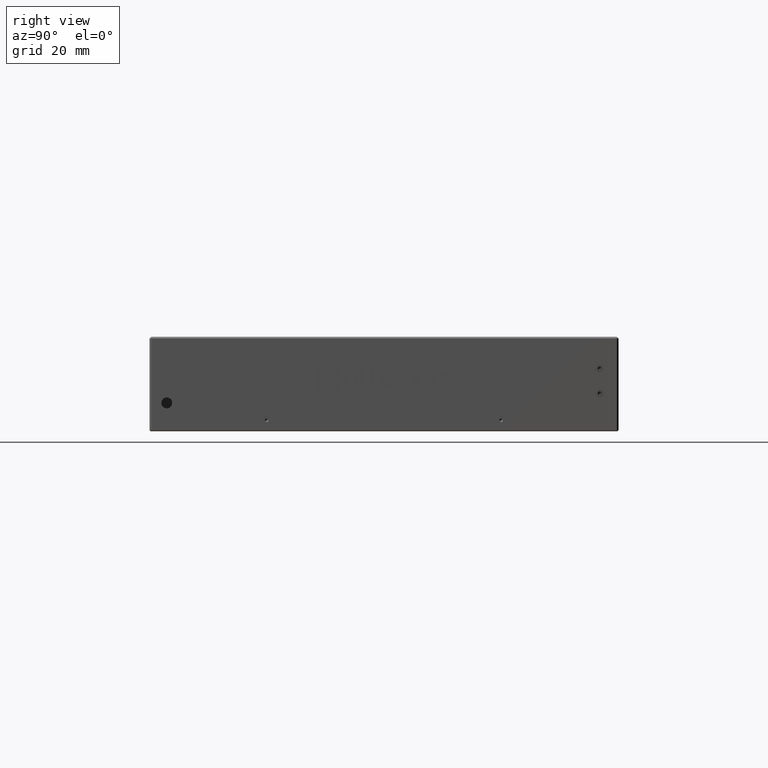
[diagram: clean part render]
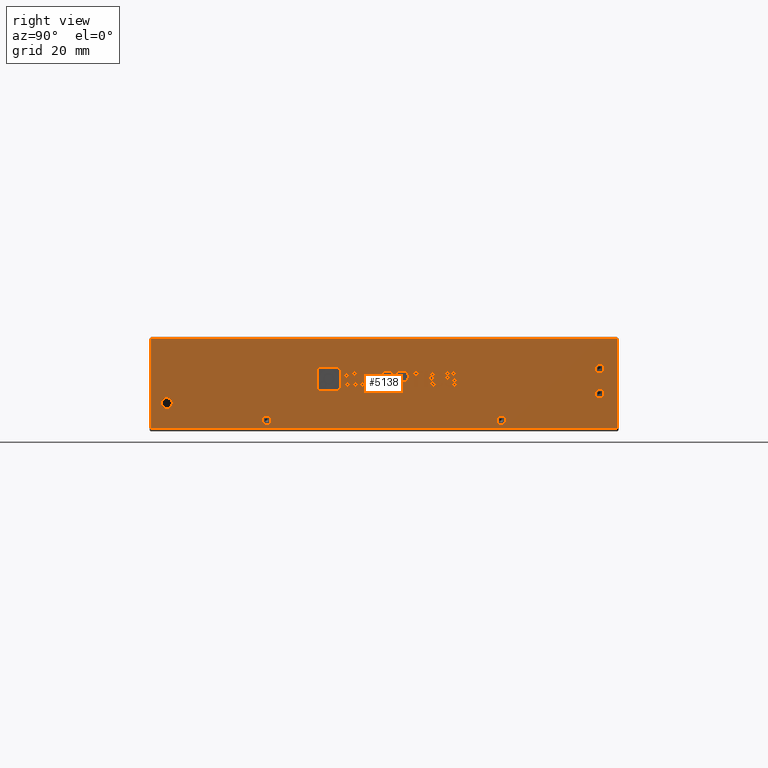
[diagram: same view with one face highlighted and labeled with its STEP entity id]
A machine part, right view. The second image highlights one B-rep face of the part: STEP entity #5138.
In plain terms, the highlighted planar face has unit normal (-1, -0, 0).
Its self-contained STEP definition (entity closure, byte-faithful):
#9 = CARTESIAN_POINT ( 'NONE',  ( 65.16824938067712500, 2.412132680417292900, 10.16197929612791200 ) ) ;
#12 = CARTESIAN_POINT ( 'NONE',  ( 65.16824938067712500, 4.126032085501429400, 14.13872348217440800 ) ) ;
#33 = LINE ( 'NONE', #6450, #12898 ) ;
#92 = CARTESIAN_POINT ( 'NONE',  ( 65.16824938067712500, 0.3727870882055437900, 9.720118831011610900 ) ) ;
#121 = VERTEX_POINT ( 'NONE', #7017 ) ;
#154 = CARTESIAN_POINT ( 'NONE',  ( 65.16824938067712500, 1.435794119033053200, 10.48756069147676400 ) ) ;
#212 = EDGE_CURVE ( 'NONE', #20296, #5054, #33, .T. ) ;
#293 = EDGE_CURVE ( 'NONE', #7578, #20883, #12134, .T. ) ;
#345 = ORIENTED_EDGE ( 'NONE', *, *, #20501, .F. ) ;
#356 = DIRECTION ( 'NONE',  ( -0.0000000000000000000, 3.469446951953649700E-015, -1.000000000000000000 ) ) ;
#376 = CARTESIAN_POINT ( 'NONE',  ( 65.16824938067712500, 1.276518835096055700, 9.960316235013776200 ) ) ;
#377 = EDGE_CURVE ( 'NONE', #1540, #10169, #12808, .T. ) ;
#419 = CARTESIAN_POINT ( 'NONE',  ( 65.16824938067712500, 2.412132680417285800, 12.02244441240698700 ) ) ;
#443 = CARTESIAN_POINT ( 'NONE',  ( 65.16824938067712500, 23.73839011686996200, 9.138723482174524900 ) ) ;
#493 = FACE_BOUND ( 'NONE', #9749, .T. ) ;
#497 = AXIS2_PLACEMENT_3D ( 'NONE', #21271, #11287, #1146 ) ;
#538 = CARTESIAN_POINT ( 'NONE',  ( 65.16824938067712500, 17.96013159875141700, 14.13872348217445600 ) ) ;
#549 = ORIENTED_EDGE ( 'NONE', *, *, #1167, .F. ) ;
#575 = DIRECTION ( 'NONE',  ( -0.0000000000000000000, -3.295296174582278100E-015, 1.000000000000000000 ) ) ;
#586 = CARTESIAN_POINT ( 'NONE',  ( 65.16824938067712500, 1.370758964895457500, 14.20849092403483200 ) ) ;
#622 = CARTESIAN_POINT ( 'NONE',  ( 65.16824938067712500, 30.18187308063424700, 10.85965371473264100 ) ) ;
#652 = CARTESIAN_POINT ( 'NONE',  ( 65.16824938067712500, 11.82776275072584000, 9.045700226360477100 ) ) ;
#674 = B_SPLINE_CURVE_WITH_KNOTS ( 'NONE', 3,
 ( #3520, #3735, #3449, #9 ),
 .UNSPECIFIED., .F., .F.,
 ( 4, 4 ),
 ( 10.00000000000000000, 11.00000000000000000 ),
 .UNSPECIFIED. ) ;
#691 = CARTESIAN_POINT ( 'NONE',  ( 65.16824938067712500, 10.35250585510661600, 9.138723482174478700 ) ) ;
#737 = ORIENTED_EDGE ( 'NONE', *, *, #8079, .F. ) ;
#767 = DIRECTION ( 'NONE',  ( 0.0000000000000000000, 0.0000000000000000000, -1.000000000000000000 ) ) ;
#768 = EDGE_CURVE ( 'NONE', #12911, #1670, #13090, .T. ) ;
#805 = EDGE_CURVE ( 'NONE', #7664, #20512, #17510, .T. ) ;
#813 = B_SPLINE_CURVE_WITH_KNOTS ( 'NONE', 3,
 ( #154, #376, #1219, #92 ),
 .UNSPECIFIED., .F., .F.,
 ( 4, 4 ),
 ( 4.000000000000000000, 5.000000000000000000 ),
 .UNSPECIFIED. ) ;
#830 = CARTESIAN_POINT ( 'NONE',  ( 65.16824938067711100, 9.506372810217598600, 11.60383976124417600 ) ) ;
#831 = CARTESIAN_POINT ( 'NONE',  ( 65.16824938067712500, -10.68911332103984400, 13.83326944970997900 ) ) ;
#832 = CARTESIAN_POINT ( 'NONE',  ( 65.16824938067712500, 14.14915269123429000, 11.60383976124419400 ) ) ;
#844 = CARTESIAN_POINT ( 'NONE',  ( 65.16824938067712500, 0.3511537728999660800, 9.045700226360438000 ) ) ;
#857 = ORIENTED_EDGE ( 'NONE', *, *, #4754, .F. ) ;
#899 = CARTESIAN_POINT ( 'NONE',  ( 65.16824938067712500, 9.578574000049803400, 9.991211313434606100 ) ) ;
#909 = CARTESIAN_POINT ( 'NONE',  ( 65.16824938067711100, 85.24938067712626800, -3.999999999999937800 ) ) ;
#911 = VERTEX_POINT ( 'NONE', #9734 ) ;
#938 = VECTOR ( 'NONE', #15105, 1000.000000000000000 ) ;
#939 = CARTESIAN_POINT ( 'NONE',  ( 65.16824938067712500, 14.14915269123429000, 11.60383976124419400 ) ) ;
#947 = B_SPLINE_CURVE_WITH_KNOTS ( 'NONE', 3,
 ( #13374, #10488, #14866, #11798 ),
 .UNSPECIFIED., .F., .F.,
 ( 4, 4 ),
 ( 2.000000000000000000, 3.000000000000000000 ),
 .UNSPECIFIED. ) ;
#949 = CARTESIAN_POINT ( 'NONE',  ( 65.16824938067712500, -9.329535523598261500, 8.007806174878934900 ) ) ;
#957 = CARTESIAN_POINT ( 'NONE',  ( 65.16824938067709600, 79.74938067712632500, 8.400000000000046500 ) ) ;
#999 = FACE_BOUND ( 'NONE', #15435, .T. ) ;
#1023 = CARTESIAN_POINT ( 'NONE',  ( 65.16824938067712500, 20.54923381616679400, 13.44104906356980300 ) ) ;
#1024 = ORIENTED_EDGE ( 'NONE', *, *, #21506, .F. ) ;
#1030 = DIRECTION ( 'NONE',  ( -0.0000000000000000000, 1.000000000000000000, 3.402735665913043100E-015 ) ) ;
#1070 = VECTOR ( 'NONE', #7725, 1000.000000000000000 ) ;
#1096 = VERTEX_POINT ( 'NONE', #7706 ) ;
#1115 = CARTESIAN_POINT ( 'NONE',  ( 65.16824938067712500, 2.390364156891194200, 12.74337464496510800 ) ) ;
#1120 = CARTESIAN_POINT ( 'NONE',  ( 65.16824938067712500, 31.57749233428463500, 13.48756069147684600 ) ) ;
#1146 = DIRECTION ( 'NONE',  ( 0.0000000000000000000, 0.0000000000000000000, -1.000000000000000000 ) ) ;
#1167 = EDGE_CURVE ( 'NONE', #18936, #17644, #9937, .T. ) ;
#1169 = VERTEX_POINT ( 'NONE', #17191 ) ;
#1194 = EDGE_CURVE ( 'NONE', #12074, #3140, #15985, .T. ) ;
#1219 = CARTESIAN_POINT ( 'NONE',  ( 65.16824938067712500, 0.9222732969671507700, 9.704502281525437400 ) ) ;
#1239 = VERTEX_POINT ( 'NONE', #3568 ) ;
#1281 = LINE ( 'NONE', #419, #5705 ) ;
#1303 = EDGE_LOOP ( 'NONE', ( #6617, #13892 ) ) ;
#1334 = EDGE_CURVE ( 'NONE', #14298, #1169, #12389, .T. ) ;
#1356 = ORIENTED_EDGE ( 'NONE', *, *, #16348, .F. ) ;
#1364 = VERTEX_POINT ( 'NONE', #17309 ) ;
#1379 = DIRECTION ( 'NONE',  ( -0.0000000000000000000, -4.972873964466782800E-015, 1.000000000000000000 ) ) ;
#1433 = VERTEX_POINT ( 'NONE', #2261 ) ;
#1444 = CARTESIAN_POINT ( 'NONE',  ( 65.16824938067712500, 32.13455020340294500, 11.23174673798845200 ) ) ;
#1512 = CARTESIAN_POINT ( 'NONE',  ( 65.16824938067712500, 11.82776275072584000, 9.045700226360477100 ) ) ;
#1540 = VERTEX_POINT ( 'NONE', #2284 ) ;
#1575 = LINE ( 'NONE', #19598, #18401 ) ;
#1601 = CARTESIAN_POINT ( 'NONE',  ( 65.16824938067712500, 26.45756264255916400, 10.40217670013015900 ) ) ;
#1603 = CARTESIAN_POINT ( 'NONE',  ( 65.16824938067712500, 32.79963944082852800, 13.19287437454876700 ) ) ;
#1624 = DIRECTION ( 'NONE',  ( -0.0000000000000000000, 3.308565339262242000E-015, -1.000000000000000000 ) ) ;
#1631 = CIRCLE ( 'NONE', #497, 1.399999999999984600 ) ;
#1660 = CARTESIAN_POINT ( 'NONE',  ( 65.16824938067712500, 25.36562105251038800, 11.62709557519774800 ) ) ;
#1670 = VERTEX_POINT ( 'NONE', #13531 ) ;
#1728 = CARTESIAN_POINT ( 'NONE',  ( 65.16824938067712500, 1.305723810758213200, 12.74337464496510500 ) ) ;
#1752 = EDGE_CURVE ( 'NONE', #13846, #20273, #18162, .T. ) ;
#1771 = ORIENTED_EDGE ( 'NONE', *, *, #14673, .F. ) ;
#1912 = CARTESIAN_POINT ( 'NONE',  ( 65.16824938067712500, 6.252181355376962700, 14.13872348217441300 ) ) ;
#1923 = CIRCLE ( 'NONE', #9688, 1.399999999999984600 ) ;
#2036 = ORIENTED_EDGE ( 'NONE', *, *, #18602, .F. ) ;
#2037 = CARTESIAN_POINT ( 'NONE',  ( 65.16824938067712500, 26.19715160956848600, 9.123444953239964400 ) ) ;
#2092 = VERTEX_POINT ( 'NONE', #949 ) ;
#2136 = DIRECTION ( 'NONE',  ( 1.000000000000000000, 1.665334536937734600E-016, 0.0000000000000000000 ) ) ;
#2156 = ORIENTED_EDGE ( 'NONE', *, *, #4421, .F. ) ;
#2158 = CARTESIAN_POINT ( 'NONE',  ( 65.16824938067712500, 33.02394987890334500, 10.46430487752336100 ) ) ;
#2177 = CARTESIAN_POINT ( 'NONE',  ( 65.16824938067712500, 5.926735168249042100, 9.688885732039171500 ) ) ;
#2218 = EDGE_CURVE ( 'NONE', #18541, #18650, #12673, .T. ) ;
#2246 = CARTESIAN_POINT ( 'NONE',  ( 65.16824938067712500, -2.035406529966368600, 11.65035138915111200 ) ) ;
#2261 = CARTESIAN_POINT ( 'NONE',  ( 65.16824938067712500, 23.13089958144520300, 13.44104906356981200 ) ) ;
#2271 = CARTESIAN_POINT ( 'NONE',  ( 65.16824938067712500, 0.2859834105419676300, 14.20849092403482800 ) ) ;
#2284 = CARTESIAN_POINT ( 'NONE',  ( 65.16824938067712500, 0.2859834105419676300, 14.20849092403482800 ) ) ;
#2346 = CARTESIAN_POINT ( 'NONE',  ( 65.16824938067712500, -1.977807827965313300, 13.27825836589531100 ) ) ;
#2372 = DIRECTION ( 'NONE',  ( 1.000000000000000000, 1.665334536937734600E-016, 0.0000000000000000000 ) ) ;
#2419 = CARTESIAN_POINT ( 'NONE',  ( 65.16824938067712500, -1.203875972908508200, 14.13074619715549800 ) ) ;
#2452 = CARTESIAN_POINT ( 'NONE',  ( 65.16824938067712500, 29.66132143109356200, 12.55732813333732900 ) ) ;
#2464 = CARTESIAN_POINT ( 'NONE',  ( 65.16824938067712500, -10.68911332103982700, 9.367329644754431000 ) ) ;
#2484 = LINE ( 'NONE', #4439, #15863 ) ;
#2497 = B_SPLINE_CURVE_WITH_KNOTS ( 'NONE', 3,
 ( #17976, #16366, #16299, #5150 ),
 .UNSPECIFIED., .F., .F.,
 ( 4, 4 ),
 ( 6.000000000000000000, 7.000000000000000000 ),
 .UNSPECIFIED. ) ;
#2553 = VERTEX_POINT ( 'NONE', #10804 ) ;
#2654 = ORIENTED_EDGE ( 'NONE', *, *, #21644, .F. ) ;
#2685 = VERTEX_POINT ( 'NONE', #11254 ) ;
#2696 = ORIENTED_EDGE ( 'NONE', *, *, #14308, .F. ) ;
#2731 = LINE ( 'NONE', #16050, #7192 ) ;
#2786 = CARTESIAN_POINT ( 'NONE',  ( 65.16824938067712500, 6.252181355376973400, 10.99918859845353900 ) ) ;
#2836 = DIRECTION ( 'NONE',  ( -0.0000000000000000000, -1.000000000000000000, -5.103426741579087300E-015 ) ) ;
#2924 = ORIENTED_EDGE ( 'NONE', *, *, #11233, .F. ) ;
#2948 = DIRECTION ( 'NONE',  ( -0.0000000000000000000, 3.315249309644624600E-015, -1.000000000000000000 ) ) ;
#2961 = VECTOR ( 'NONE', #3730, 1000.000000000000000 ) ;
#2985 = DIRECTION ( 'NONE',  ( 0.0000000000000000000, 0.0000000000000000000, -1.000000000000000000 ) ) ;
#3022 = VERTEX_POINT ( 'NONE', #4984 ) ;
#3054 = DIRECTION ( 'NONE',  ( 1.000000000000000000, 1.665334536937734600E-016, 0.0000000000000000000 ) ) ;
#3075 = DIRECTION ( 'NONE',  ( -0.0000000000000000000, -1.000000000000000000, -4.299026547488673700E-015 ) ) ;
#3140 = VERTEX_POINT ( 'NONE', #17215 ) ;
#3161 = VERTEX_POINT ( 'NONE', #831 ) ;
#3179 = CIRCLE ( 'NONE', #11524, 1.399999999999998600 ) ;
#3210 = CARTESIAN_POINT ( 'NONE',  ( 65.16824938067712500, 19.00894176641009300, 14.13872348217445900 ) ) ;
#3212 = CARTESIAN_POINT ( 'NONE',  ( 65.16824938067709600, 79.74938067712632500, 15.00000000000006200 ) ) ;
#3245 = EDGE_CURVE ( 'NONE', #18964, #3775, #2484, .T. ) ;
#3250 = VERTEX_POINT ( 'NONE', #14398 ) ;
#3290 = CARTESIAN_POINT ( 'NONE',  ( 65.16824938067712500, 15.81965025748622400, 9.138723482174498300 ) ) ;
#3323 = DIRECTION ( 'NONE',  ( -1.665334536937734600E-016, 1.000000000000000000, 0.0000000000000000000 ) ) ;
#3335 = EDGE_CURVE ( 'NONE', #19825, #16398, #2731, .T. ) ;
#3378 = EDGE_LOOP ( 'NONE', ( #10524, #7997, #3429, #5720 ) ) ;
#3381 = VECTOR ( 'NONE', #4760, 1000.000000000000000 ) ;
#3429 = ORIENTED_EDGE ( 'NONE', *, *, #212, .F. ) ;
#3449 = CARTESIAN_POINT ( 'NONE',  ( 65.16824938067712500, 2.122651879984843500, 9.417793249616304200 ) ) ;
#3468 = CARTESIAN_POINT ( 'NONE',  ( 65.16824938067712500, 32.06937984104507000, 13.48756069147684800 ) ) ;
#3515 = CARTESIAN_POINT ( 'NONE',  ( 65.16824938067711100, 27.60020731535527400, 14.20849092403492400 ) ) ;
#3517 = CARTESIAN_POINT ( 'NONE',  ( 65.16824938067711100, 9.506372810217598600, 11.60383976124417600 ) ) ;
#3520 = CARTESIAN_POINT ( 'NONE',  ( 65.16824938067712500, 0.3511537728999660800, 9.045700226360438000 ) ) ;
#3568 = CARTESIAN_POINT ( 'NONE',  ( 65.16824938067709600, 79.74938067712632500, 16.40000000000004500 ) ) ;
#3605 = DIRECTION ( 'NONE',  ( -0.0000000000000000000, 1.000000000000000000, 3.378690702683114700E-015 ) ) ;
#3653 = CARTESIAN_POINT ( 'NONE',  ( 65.16824938067712500, 18.53868757495491700, 11.39453743566278700 ) ) ;
#3730 = DIRECTION ( 'NONE',  ( -0.0000000000000000000, -3.978299171573648300E-015, 1.000000000000000000 ) ) ;
#3735 = CARTESIAN_POINT ( 'NONE',  ( 65.16824938067712500, 1.435794119033058300, 9.045700226360441600 ) ) ;
#3745 = EDGE_CURVE ( 'NONE', #3250, #12461, #5527, .T. ) ;
#3754 = ORIENTED_EDGE ( 'NONE', *, *, #3936, .F. ) ;
#3764 = CARTESIAN_POINT ( 'NONE',  ( 65.16824938067712500, 29.66132143109356200, 12.55732813333732900 ) ) ;
#3775 = VERTEX_POINT ( 'NONE', #10295 ) ;
#3783 = CARTESIAN_POINT ( 'NONE',  ( 65.16824938067711100, 18.50988822395471100, 12.51081650543025800 ) ) ;
#3796 = VECTOR ( 'NONE', #20345, 1000.000000000000000 ) ;
#3833 = ORIENTED_EDGE ( 'NONE', *, *, #16550, .F. ) ;
#3853 = CARTESIAN_POINT ( 'NONE',  ( 65.16824938067712500, 32.67687037646949500, 9.696863017058207700 ) ) ;
#3928 = VERTEX_POINT ( 'NONE', #16106 ) ;
#3936 = EDGE_CURVE ( 'NONE', #20479, #19243, #19500, .T. ) ;
#3963 = ORIENTED_EDGE ( 'NONE', *, *, #7426, .F. ) ;
#3964 = CARTESIAN_POINT ( 'NONE',  ( 65.16824938067712500, 26.42862808333812200, 11.58058394729075000 ) ) ;
#3975 = CARTESIAN_POINT ( 'NONE',  ( 65.16824938067712500, 0.04734090107771572000, 12.02244441240698000 ) ) ;
#3984 = CARTESIAN_POINT ( 'NONE',  ( 65.16824938067712500, 27.88225166365188200, 9.720118831011705000 ) ) ;
#4013 = CARTESIAN_POINT ( 'NONE',  ( 65.16824938067712500, 26.94187848896279300, 9.781908987853219300 ) ) ;
#4039 = DIRECTION ( 'NONE',  ( -0.0000000000000000000, 1.000000000000000000, 3.748178448240556600E-015 ) ) ;
#4086 = CARTESIAN_POINT ( 'NONE',  ( 65.16824938067712500, 28.50393906224535800, 9.688885732039247900 ) ) ;
#4099 = AXIS2_PLACEMENT_3D ( 'NONE', #3212, #3054, #2985 ) ;
#4104 = LINE ( 'NONE', #7693, #8062 ) ;
#4117 = DIRECTION ( 'NONE',  ( -0.0000000000000000000, -1.000000000000000000, -2.934251533065247700E-015 ) ) ;
#4133 = CARTESIAN_POINT ( 'NONE',  ( 65.16824938067712500, 29.42970974910340900, 13.64237410413230700 ) ) ;
#4143 = VECTOR ( 'NONE', #1379, 1000.000000000000000 ) ;
#4162 = ORIENTED_EDGE ( 'NONE', *, *, #18949, .F. ) ;
#4240 = CARTESIAN_POINT ( 'NONE',  ( 65.16824938067712500, 29.55274922990391700, 10.83639790077912400 ) ) ;
#4247 = VECTOR ( 'NONE', #17913, 1000.000000000000000 ) ;
#4296 = ORIENTED_EDGE ( 'NONE', *, *, #21313, .F. ) ;
#4306 = DIRECTION ( 'NONE',  ( -0.0000000000000000000, 3.469446951953649700E-015, -1.000000000000000000 ) ) ;
#4319 = DIRECTION ( 'NONE',  ( -0.0000000000000000000, 1.000000000000000000, 3.295296257828142900E-015 ) ) ;
#4334 = B_SPLINE_CURVE_WITH_KNOTS ( 'NONE', 3,
 ( #12071, #13724, #3653, #8587 ),
 .UNSPECIFIED., .F., .F.,
 ( 4, 4 ),
 ( 6.000000000000000000, 7.000000000000000000 ),
 .UNSPECIFIED. ) ;
#4383 = CARTESIAN_POINT ( 'NONE',  ( 65.16824938067712500, 30.18903911632896700, 11.99918859845357000 ) ) ;
#4394 = EDGE_CURVE ( 'NONE', #10449, #5431, #17664, .T. ) ;
#4416 = FACE_BOUND ( 'NONE', #19423, .T. ) ;
#4421 = EDGE_CURVE ( 'NONE', #13870, #14625, #4334, .T. ) ;
#4439 = CARTESIAN_POINT ( 'NONE',  ( 65.16824938067712500, 21.59060753168829500, 9.138723482174519600 ) ) ;
#4454 = CARTESIAN_POINT ( 'NONE',  ( 65.16824938067711100, 48.24938067712633200, -0.09999999999994366200 ) ) ;
#4470 = CARTESIAN_POINT ( 'NONE',  ( 65.16824938067712500, 7.293555070898903200, 11.30151417984885700 ) ) ;
#4497 = VERTEX_POINT ( 'NONE', #7361 ) ;
#4530 = CARTESIAN_POINT ( 'NONE',  ( 65.16824938067712500, 7.293555070898894300, 14.13872348217441700 ) ) ;
#4572 = CARTESIAN_POINT ( 'NONE',  ( 65.16824938067712500, -63.75061932287363900, -3.999999999999937800 ) ) ;
#4614 = CARTESIAN_POINT ( 'NONE',  ( 65.16824938067712500, 33.95688660145600600, 12.65035138915124000 ) ) ;
#4651 = ORIENTED_EDGE ( 'NONE', *, *, #4719, .F. ) ;
#4666 = B_SPLINE_CURVE_WITH_KNOTS ( 'NONE', 3,
 ( #1444, #14886, #6512, #18265 ),
 .UNSPECIFIED., .F., .F.,
 ( 4, 4 ),
 ( 3.000000000000000000, 4.000000000000000000 ),
 .UNSPECIFIED. ) ;
#4719 = EDGE_CURVE ( 'NONE', #11229, #16764, #3179, .T. ) ;
#4754 = EDGE_CURVE ( 'NONE', #1169, #1364, #17509, .T. ) ;
#4760 = DIRECTION ( 'NONE',  ( -0.0000000000000000000, 1.000000000000000000, 3.476497718012924100E-015 ) ) ;
#4828 = VERTEX_POINT ( 'NONE', #3468 ) ;
#4833 = ORIENTED_EDGE ( 'NONE', *, *, #5976, .F. ) ;
#4927 = FACE_OUTER_BOUND ( 'NONE', #12094, .T. ) ;
#4948 = CARTESIAN_POINT ( 'NONE',  ( 65.16824938067712500, 23.73839011686994700, 14.13872348217447500 ) ) ;
#4949 = CARTESIAN_POINT ( 'NONE',  ( 65.16824938067712500, 11.82776275072582500, 14.20849092403486900 ) ) ;
#4984 = CARTESIAN_POINT ( 'NONE',  ( 65.16824938067712500, -0.9940328144448810100, 11.62709557519765500 ) ) ;
#5026 = CARTESIAN_POINT ( 'NONE',  ( 65.16824938067712500, 10.35250585510659800, 14.14636274664171400 ) ) ;
#5045 = EDGE_CURVE ( 'NONE', #17644, #20273, #10788, .T. ) ;
#5050 = B_SPLINE_CURVE_WITH_KNOTS ( 'NONE', 3,
 ( #19011, #5514, #586, #12369 ),
 .UNSPECIFIED., .F., .F.,
 ( 4, 4 ),
 ( 13.00000000000000000, 14.00000000000000000 ),
 .UNSPECIFIED. ) ;
#5054 = VERTEX_POINT ( 'NONE', #18213 ) ;
#5065 = VERTEX_POINT ( 'NONE', #18060 ) ;
#5107 = ORIENTED_EDGE ( 'NONE', *, *, #17941, .F. ) ;
#5138 = ADVANCED_FACE ( 'NONE', ( #14399, #19410, #9973, #5424, #999, #18875, #18335, #13913, #9447, #4927, #493, #17774, #13378, #8909, #4416 ), #18806, .F. ) ;
#5150 = CARTESIAN_POINT ( 'NONE',  ( 65.16824938067712500, 29.55274922990392400, 9.882909528686099100 ) ) ;
#5154 = CARTESIAN_POINT ( 'NONE',  ( 65.16824938067712500, 25.43782224234302800, 13.25500255194194600 ) ) ;
#5156 = CARTESIAN_POINT ( 'NONE',  ( 65.16824938067712500, 9.578574000049792800, 13.27825836589535100 ) ) ;
#5162 = ORIENTED_EDGE ( 'NONE', *, *, #10216, .F. ) ;
#5185 = LINE ( 'NONE', #11174, #9719 ) ;
#5220 = CARTESIAN_POINT ( 'NONE',  ( 65.16824938067712500, 0.2859834105419702400, 13.51081650543019600 ) ) ;
#5229 = EDGE_CURVE ( 'NONE', #20292, #4497, #11573, .T. ) ;
#5304 = AXIS2_PLACEMENT_3D ( 'NONE', #8646, #20429, #10368 ) ;
#5310 = CARTESIAN_POINT ( 'NONE',  ( 65.16824938067712500, -26.75061932287365400, -1.499999999999942300 ) ) ;
#5316 = B_SPLINE_CURVE_WITH_KNOTS ( 'NONE', 3,
 ( #7093, #8808, #20581, #10518 ),
 .UNSPECIFIED., .F., .F.,
 ( 4, 4 ),
 ( 1.000000000000000000, 2.000000000000000000 ),
 .UNSPECIFIED. ) ;
#5358 = DIRECTION ( 'NONE',  ( 1.000000000000000000, 1.665334536937734600E-016, 0.0000000000000000000 ) ) ;
#5375 = DIRECTION ( 'NONE',  ( 0.0000000000000000000, 0.0000000000000000000, -1.000000000000000000 ) ) ;
#5424 = FACE_BOUND ( 'NONE', #19382, .T. ) ;
#5431 = VERTEX_POINT ( 'NONE', #12982 ) ;
#5445 = B_SPLINE_CURVE_WITH_KNOTS ( 'NONE', 3,
 ( #10808, #14152, #4086, #15819 ),
 .UNSPECIFIED., .F., .F.,
 ( 4, 4 ),
 ( 4.000000000000000000, 5.000000000000000000 ),
 .UNSPECIFIED. ) ;
#5461 = CARTESIAN_POINT ( 'NONE',  ( 65.16824938067712500, 1.435794119033053200, 10.48756069147676400 ) ) ;
#5472 = CARTESIAN_POINT ( 'NONE',  ( 65.16824938067712500, 14.14915269123429000, 11.60383976124419400 ) ) ;
#5491 = LINE ( 'NONE', #12748, #1070 ) ;
#5506 = EDGE_CURVE ( 'NONE', #19345, #12353, #7868, .T. ) ;
#5514 = CARTESIAN_POINT ( 'NONE',  ( 65.16824938067712500, 2.072084005457987700, 13.72011883101162000 ) ) ;
#5527 = CIRCLE ( 'NONE', #21461, 1.749999999999994700 ) ;
#5533 = B_SPLINE_CURVE_WITH_KNOTS ( 'NONE', 3,
 ( #14751, #14672, #16429, #6370 ),
 .UNSPECIFIED., .F., .F.,
 ( 4, 4 ),
 ( 3.000000000000000000, 4.000000000000000000 ),
 .UNSPECIFIED. ) ;
#5541 = EDGE_CURVE ( 'NONE', #121, #6637, #20701, .T. ) ;
#5544 = CARTESIAN_POINT ( 'NONE',  ( 65.16824938067712500, 30.91956913255388500, 14.19287437454873300 ) ) ;
#5555 = VERTEX_POINT ( 'NONE', #12359 ) ;
#5598 = CARTESIAN_POINT ( 'NONE',  ( 65.16824938067712500, 11.82776275072584000, 9.045700226360477100 ) ) ;
#5705 = VECTOR ( 'NONE', #20487, 1000.000000000000000 ) ;
#5720 = ORIENTED_EDGE ( 'NONE', *, *, #10919, .F. ) ;
#5761 = CARTESIAN_POINT ( 'NONE',  ( 65.16824938067711100, 27.60020731535527400, 14.20849092403492400 ) ) ;
#5776 = CARTESIAN_POINT ( 'NONE',  ( 65.16824938067712500, -9.329535523598261500, 8.007806174878934900 ) ) ;
#5826 = CARTESIAN_POINT ( 'NONE',  ( 65.16824938067712500, 31.33181899734561400, 9.712141545992828600 ) ) ;
#5935 = CARTESIAN_POINT ( 'NONE',  ( 65.16824938067712500, 32.17781683401410200, 12.11546766822098700 ) ) ;
#5963 = DIRECTION ( 'NONE',  ( 1.000000000000000000, 1.665334536937734600E-016, 0.0000000000000000000 ) ) ;
#5965 = ORIENTED_EDGE ( 'NONE', *, *, #16957, .F. ) ;
#5972 = CARTESIAN_POINT ( 'NONE',  ( 65.16824938067712500, -58.75061932287363900, 4.000000000000062200 ) ) ;
#5976 = EDGE_CURVE ( 'NONE', #20271, #14031, #2497, .T. ) ;
#5985 = EDGE_CURVE ( 'NONE', #6637, #121, #9101, .T. ) ;
#5994 = ORIENTED_EDGE ( 'NONE', *, *, #7136, .F. ) ;
#6004 = VERTEX_POINT ( 'NONE', #5220 ) ;
#6010 = VERTEX_POINT ( 'NONE', #6341 ) ;
#6022 = VERTEX_POINT ( 'NONE', #20616 ) ;
#6281 = DIRECTION ( 'NONE',  ( 0.0000000000000000000, 0.0000000000000000000, -1.000000000000000000 ) ) ;
#6341 = CARTESIAN_POINT ( 'NONE',  ( 65.16824938067712500, 4.126032085501441000, 10.99918859845353400 ) ) ;
#6370 = CARTESIAN_POINT ( 'NONE',  ( 65.16824938067712500, 4.126032085501441000, 10.99918859845353400 ) ) ;
#6439 = CARTESIAN_POINT ( 'NONE',  ( 65.16824938067711100, 32.17781683401410900, 9.045700226360548200 ) ) ;
#6441 = DIRECTION ( 'NONE',  ( -0.0000000000000000000, 1.000000000000000000, 3.402284494386058100E-015 ) ) ;
#6450 = CARTESIAN_POINT ( 'NONE',  ( 65.16824938067712500, 24.75813051708587100, 9.138723482174528500 ) ) ;
#6469 = CARTESIAN_POINT ( 'NONE',  ( 65.16824938067712500, -58.75061932287363900, 5.750000000000056800 ) ) ;
#6483 = ORIENTED_EDGE ( 'NONE', *, *, #17481, .F. ) ;
#6512 = CARTESIAN_POINT ( 'NONE',  ( 65.16824938067712500, 33.02394987890333800, 10.86729297919993600 ) ) ;
#6582 = ORIENTED_EDGE ( 'NONE', *, *, #11164, .F. ) ;
#6584 = LINE ( 'NONE', #9439, #15531 ) ;
#6601 = EDGE_CURVE ( 'NONE', #911, #7664, #12880, .T. ) ;
#6617 = ORIENTED_EDGE ( 'NONE', *, *, #9993, .F. ) ;
#6637 = VERTEX_POINT ( 'NONE', #15113 ) ;
#6643 = B_SPLINE_CURVE_WITH_KNOTS ( 'NONE', 3,
 ( #17795, #16122, #14522, #4470 ),
 .UNSPECIFIED., .F., .F.,
 ( 4, 4 ),
 ( 8.000000000000000000, 9.000000000000000000 ),
 .UNSPECIFIED. ) ;
#6646 = CARTESIAN_POINT ( 'NONE',  ( 65.16824938067712500, 0.8066702683028249600, 13.51081650543019700 ) ) ;
#6685 = ORIENTED_EDGE ( 'NONE', *, *, #10862, .F. ) ;
#6731 = AXIS2_PLACEMENT_3D ( 'NONE', #19481, #19406, #19357 ) ;
#6734 = B_SPLINE_CURVE_WITH_KNOTS ( 'NONE', 3,
 ( #2452, #4133, #15859, #5761 ),
 .UNSPECIFIED., .F., .F.,
 ( 4, 4 ),
 ( 9.000000000000000000, 10.00000000000000000 ),
 .UNSPECIFIED. ) ;
#6756 = CIRCLE ( 'NONE', #6731, 1.399999999999984600 ) ;
#6809 = CARTESIAN_POINT ( 'NONE',  ( 65.16824938067709600, 79.74938067712632500, 5.600000000000076900 ) ) ;
#6874 = ORIENTED_EDGE ( 'NONE', *, *, #15959, .T. ) ;
#7017 = CARTESIAN_POINT ( 'NONE',  ( 65.16824938067712500, -26.75061932287365400, -0.09999999999994735300 ) ) ;
#7034 = CARTESIAN_POINT ( 'NONE',  ( 65.16824938067712500, 25.36562105251038800, 11.62709557519774800 ) ) ;
#7076 = VECTOR ( 'NONE', #4306, 1000.000000000000000 ) ;
#7093 = CARTESIAN_POINT ( 'NONE',  ( 65.16824938067712500, -9.329535523598291700, 15.46465684212606600 ) ) ;
#7097 = VERTEX_POINT ( 'NONE', #4530 ) ;
#7102 = EDGE_CURVE ( 'NONE', #6022, #19345, #16744, .T. ) ;
#7136 = EDGE_CURVE ( 'NONE', #3140, #12911, #947, .T. ) ;
#7151 = VERTEX_POINT ( 'NONE', #18008 ) ;
#7192 = VECTOR ( 'NONE', #17533, 1000.000000000000000 ) ;
#7203 = CARTESIAN_POINT ( 'NONE',  ( 65.16824938067712500, 13.27394987890316900, 14.11546766822095100 ) ) ;
#7271 = CARTESIAN_POINT ( 'NONE',  ( 65.16824938067712500, 30.29044528182377900, 12.83639790077915600 ) ) ;
#7361 = CARTESIAN_POINT ( 'NONE',  ( 65.16824938067712500, 0.04734090107771572000, 12.02244441240698000 ) ) ;
#7400 = ORIENTED_EDGE ( 'NONE', *, *, #15802, .F. ) ;
#7405 = CARTESIAN_POINT ( 'NONE',  ( 65.16824938067712500, 1.435794119033050100, 11.32476999380229500 ) ) ;
#7426 = EDGE_CURVE ( 'NONE', #1364, #12450, #9124, .T. ) ;
#7449 = CARTESIAN_POINT ( 'NONE',  ( 65.16824938067712500, 32.13455020340294500, 11.23174673798845200 ) ) ;
#7488 = ORIENTED_EDGE ( 'NONE', *, *, #15919, .F. ) ;
#7509 = EDGE_CURVE ( 'NONE', #13017, #15324, #20454, .T. ) ;
#7525 = VECTOR ( 'NONE', #8191, 1000.000000000000000 ) ;
#7555 = LINE ( 'NONE', #3764, #12087 ) ;
#7571 = CARTESIAN_POINT ( 'NONE',  ( 65.16824938067712500, -4.591718325310594700, 15.46465684212608400 ) ) ;
#7578 = VERTEX_POINT ( 'NONE', #1912 ) ;
#7641 = ORIENTED_EDGE ( 'NONE', *, *, #16296, .F. ) ;
#7664 = VERTEX_POINT ( 'NONE', #21458 ) ;
#7682 = ORIENTED_EDGE ( 'NONE', *, *, #377, .F. ) ;
#7693 = CARTESIAN_POINT ( 'NONE',  ( 65.16824938067712500, -4.591718325310568000, 8.007806174878950900 ) ) ;
#7705 = CARTESIAN_POINT ( 'NONE',  ( 65.16824938067712500, -4.591718325310571600, 8.007806174878947300 ) ) ;
#7706 = CARTESIAN_POINT ( 'NONE',  ( 65.16824938067712500, 2.412132680417292900, 10.16197929612791200 ) ) ;
#7725 = DIRECTION ( 'NONE',  ( -0.0000000000000000000, -1.000000000000000000, -3.331606031764248800E-015 ) ) ;
#7732 = DIRECTION ( 'NONE',  ( 0.0000000000000000000, 0.0000000000000000000, -1.000000000000000000 ) ) ;
#7803 = CARTESIAN_POINT ( 'NONE',  ( 65.16824938067712500, 29.55274922990391700, 10.83639790077912400 ) ) ;
#7812 = DIRECTION ( 'NONE',  ( -0.0000000000000000000, 1.000000000000000000, 3.331606031765669500E-015 ) ) ;
#7833 = CARTESIAN_POINT ( 'NONE',  ( 65.16824938067712500, 33.95688660145600600, 12.65035138915124000 ) ) ;
#7868 = B_SPLINE_CURVE_WITH_KNOTS ( 'NONE', 3,
 ( #14494, #15390, #14567, #14292 ),
 .UNSPECIFIED., .F., .F.,
 ( 4, 4 ),
 ( 6.000000000000000000, 7.000000000000000000 ),
 .UNSPECIFIED. ) ;
#7981 = VERTEX_POINT ( 'NONE', #8058 ) ;
#7997 = ORIENTED_EDGE ( 'NONE', *, *, #20593, .F. ) ;
#8026 = CARTESIAN_POINT ( 'NONE',  ( 65.16824938067712500, 33.46499909469580600, 9.045700226360553500 ) ) ;
#8044 = VECTOR ( 'NONE', #16693, 1000.000000000000000 ) ;
#8058 = CARTESIAN_POINT ( 'NONE',  ( 65.16824938067712500, 14.80004506549060400, 9.138723482174494700 ) ) ;
#8062 = VECTOR ( 'NONE', #4319, 1000.000000000000000 ) ;
#8079 = EDGE_CURVE ( 'NONE', #21545, #1096, #674, .T. ) ;
#8081 = LINE ( 'NONE', #18933, #16439 ) ;
#8090 = EDGE_CURVE ( 'NONE', #15912, #1239, #20354, .T. ) ;
#8161 = ORIENTED_EDGE ( 'NONE', *, *, #14044, .F. ) ;
#8191 = DIRECTION ( 'NONE',  ( -0.0000000000000000000, 3.626053932423960400E-015, -1.000000000000000000 ) ) ;
#8213 = DIRECTION ( 'NONE',  ( -0.0000000000000000000, -3.225647976951513500E-015, 1.000000000000000000 ) ) ;
#8246 = ORIENTED_EDGE ( 'NONE', *, *, #5985, .F. ) ;
#8302 = EDGE_CURVE ( 'NONE', #20512, #18964, #6584, .T. ) ;
#8306 = CARTESIAN_POINT ( 'NONE',  ( 65.16824938067712500, 7.293555070898894300, 14.13872348217441700 ) ) ;
#8321 = ORIENTED_EDGE ( 'NONE', *, *, #10997, .F. ) ;
#8330 = CARTESIAN_POINT ( 'NONE',  ( 65.16824938067712500, 32.50326302114203300, 13.47194414199061900 ) ) ;
#8418 = EDGE_CURVE ( 'NONE', #14736, #20479, #17956, .T. ) ;
#8419 = CARTESIAN_POINT ( 'NONE',  ( 65.16824938067712500, 2.412132680417285800, 12.02244441240698700 ) ) ;
#8456 = CARTESIAN_POINT ( 'NONE',  ( 65.16824938067712500, 0.2859834105419702400, 13.51081650543019600 ) ) ;
#8501 = LINE ( 'NONE', #9777, #16329 ) ;
#8559 = VERTEX_POINT ( 'NONE', #17209 ) ;
#8587 = CARTESIAN_POINT ( 'NONE',  ( 65.16824938067711100, 18.50988822395471100, 12.51081650543025800 ) ) ;
#8624 = LINE ( 'NONE', #13160, #4143 ) ;
#8635 = EDGE_LOOP ( 'NONE', ( #6685, #17594, #2924, #17290 ) ) ;
#8646 = CARTESIAN_POINT ( 'NONE',  ( 65.16824938067711100, 48.24938067712633200, -1.499999999999942300 ) ) ;
#8651 = LINE ( 'NONE', #3210, #17011 ) ;
#8760 = CARTESIAN_POINT ( 'NONE',  ( 65.16824938067712500, 25.43782224234303500, 9.983572048967321400 ) ) ;
#8808 = CARTESIAN_POINT ( 'NONE',  ( 65.16824938067712500, -10.22698271773305100, 15.46465684212606500 ) ) ;
#8861 = EDGE_CURVE ( 'NONE', #8559, #21417, #10799, .T. ) ;
#8867 = DIRECTION ( 'NONE',  ( -0.0000000000000000000, 1.000000000000000000, 3.198707262110500700E-015 ) ) ;
#8875 = CARTESIAN_POINT ( 'NONE',  ( 65.16824938067712500, 6.252181355376973400, 10.99918859845353900 ) ) ;
#8888 = DIRECTION ( 'NONE',  ( -0.0000000000000000000, 1.000000000000000000, 3.476497718012537100E-015 ) ) ;
#8909 = FACE_BOUND ( 'NONE', #1303, .T. ) ;
#8920 = CARTESIAN_POINT ( 'NONE',  ( 65.16824938067711100, 18.50988822395471100, 12.51081650543025800 ) ) ;
#8940 = VECTOR ( 'NONE', #14593, 1000.000000000000000 ) ;
#8961 = ORIENTED_EDGE ( 'NONE', *, *, #15261, .F. ) ;
#9011 = ORIENTED_EDGE ( 'NONE', *, *, #19199, .F. ) ;
#9043 = B_SPLINE_CURVE_WITH_KNOTS ( 'NONE', 3,
 ( #2464, #12563, #15872, #5776 ),
 .UNSPECIFIED., .F., .F.,
 ( 4, 4 ),
 ( 7.000000000000000000, 8.000000000000000000 ),
 .UNSPECIFIED. ) ;
#9092 = CARTESIAN_POINT ( 'NONE',  ( 65.16824938067711100, 85.24938067712629700, 24.70000000000009200 ) ) ;
#9101 = CIRCLE ( 'NONE', #20537, 1.399999999999995000 ) ;
#9124 = B_SPLINE_CURVE_WITH_KNOTS ( 'NONE', 3,
 ( #10123, #10031, #9955, #9818 ),
 .UNSPECIFIED., .F., .F.,
 ( 4, 4 ),
 ( 11.00000000000000000, 12.00000000000000000 ),
 .UNSPECIFIED. ) ;
#9162 = ORIENTED_EDGE ( 'NONE', *, *, #20842, .F. ) ;
#9195 = EDGE_LOOP ( 'NONE', ( #13768, #21116 ) ) ;
#9231 = DIRECTION ( 'NONE',  ( -0.0000000000000000000, 3.225647976951513500E-015, -1.000000000000000000 ) ) ;
#9237 = CARTESIAN_POINT ( 'NONE',  ( 65.16824938067712500, 30.18187308063425400, 9.975932784500050900 ) ) ;
#9291 = CARTESIAN_POINT ( 'NONE',  ( 65.16824938067712500, 30.18187308063424700, 10.85965371473264100 ) ) ;
#9355 = VECTOR ( 'NONE', #575, 1000.000000000000000 ) ;
#9437 = CARTESIAN_POINT ( 'NONE',  ( 65.16824938067712500, 0.3727870882055437900, 9.720118831011610900 ) ) ;
#9439 = CARTESIAN_POINT ( 'NONE',  ( 65.16824938067712500, 20.54923381616680800, 9.138723482174516000 ) ) ;
#9447 = FACE_BOUND ( 'NONE', #21740, .T. ) ;
#9515 = CARTESIAN_POINT ( 'NONE',  ( 65.16824938067712500, -0.9940328144448810100, 11.62709557519765500 ) ) ;
#9571 = CARTESIAN_POINT ( 'NONE',  ( 65.16824938067712500, -63.75061932287363900, -3.999999999999937800 ) ) ;
#9606 = VERTEX_POINT ( 'NONE', #13010 ) ;
#9688 = AXIS2_PLACEMENT_3D ( 'NONE', #12470, #2372, #14127 ) ;
#9695 = CARTESIAN_POINT ( 'NONE',  ( 65.16824938067712500, 11.82776275072582500, 14.20849092403486900 ) ) ;
#9703 = EDGE_LOOP ( 'NONE', ( #21510, #8321, #10717, #13479, #20394, #12099, #16317, #11086, #16589, #16914 ) ) ;
#9719 = VECTOR ( 'NONE', #1030, 1000.000000000000000 ) ;
#9734 = CARTESIAN_POINT ( 'NONE',  ( 65.16824938067712500, 19.00894176641009300, 14.13872348217445900 ) ) ;
#9749 = EDGE_LOOP ( 'NONE', ( #8246, #17859 ) ) ;
#9777 = CARTESIAN_POINT ( 'NONE',  ( 65.16824938067712500, 14.80004506549058600, 14.13872348217444300 ) ) ;
#9818 = CARTESIAN_POINT ( 'NONE',  ( 65.16824938067712500, 32.17781683401410200, 12.11546766822098700 ) ) ;
#9829 = CARTESIAN_POINT ( 'NONE',  ( 65.16824938067712500, 0.3727870882055437900, 9.720118831011610900 ) ) ;
#9937 = LINE ( 'NONE', #20734, #18841 ) ;
#9955 = CARTESIAN_POINT ( 'NONE',  ( 65.16824938067712500, 33.45039660686421000, 11.85167642971370900 ) ) ;
#9964 = EDGE_CURVE ( 'NONE', #10169, #21545, #21088, .T. ) ;
#9973 = FACE_BOUND ( 'NONE', #16006, .T. ) ;
#9990 = CARTESIAN_POINT ( 'NONE',  ( 65.16824938067712500, 27.88225166365188200, 9.720118831011705000 ) ) ;
#9993 = EDGE_CURVE ( 'NONE', #16418, #11364, #6756, .T. ) ;
#10031 = CARTESIAN_POINT ( 'NONE',  ( 65.16824938067712500, 34.08709211795113700, 11.32476999380241100 ) ) ;
#10123 = CARTESIAN_POINT ( 'NONE',  ( 65.16824938067712500, 34.08709211795113700, 10.53407231938382600 ) ) ;
#10160 = DIRECTION ( 'NONE',  ( -0.0000000000000000000, 7.851906259684212800E-015, -1.000000000000000000 ) ) ;
#10164 = CARTESIAN_POINT ( 'NONE',  ( 65.16824938067712500, 20.54923381616680800, 9.138723482174516000 ) ) ;
#10169 = VERTEX_POINT ( 'NONE', #16416 ) ;
#10216 = EDGE_CURVE ( 'NONE', #18706, #9606, #21498, .T. ) ;
#10295 = CARTESIAN_POINT ( 'NONE',  ( 65.16824938067712500, 21.59060753168829500, 9.138723482174519600 ) ) ;
#10368 = DIRECTION ( 'NONE',  ( 0.0000000000000000000, 0.0000000000000000000, -1.000000000000000000 ) ) ;
#10390 = ORIENTED_EDGE ( 'NONE', *, *, #3745, .T. ) ;
#10449 = VERTEX_POINT ( 'NONE', #9695 ) ;
#10488 = CARTESIAN_POINT ( 'NONE',  ( 65.16824938067712500, 26.44296015472801600, 12.82078135129288300 ) ) ;
#10509 = ORIENTED_EDGE ( 'NONE', *, *, #1752, .T. ) ;
#10518 = CARTESIAN_POINT ( 'NONE',  ( 65.16824938067712500, -10.68911332103984400, 13.83326944970997900 ) ) ;
#10524 = ORIENTED_EDGE ( 'NONE', *, *, #13434, .F. ) ;
#10571 = CARTESIAN_POINT ( 'NONE',  ( 65.16824938067711100, 48.24938067712633200, -2.899999999999940800 ) ) ;
#10613 = B_SPLINE_CURVE_WITH_KNOTS ( 'NONE', 3,
 ( #19576, #11269, #1120, #12905 ),
 .UNSPECIFIED., .F., .F.,
 ( 4, 4 ),
 ( 9.000000000000000000, 10.00000000000000000 ),
 .UNSPECIFIED. ) ;
#10641 = DIRECTION ( 'NONE',  ( -0.0000000000000000000, 1.000000000000000000, 3.378690702683601800E-015 ) ) ;
#10646 = CARTESIAN_POINT ( 'NONE',  ( 65.16824938067709600, 85.74938067712632500, -3.999999999999937800 ) ) ;
#10668 = CARTESIAN_POINT ( 'NONE',  ( 65.16824938067712500, -3.232262842168608600, 14.10514696272902500 ) ) ;
#10676 = LINE ( 'NONE', #17180, #21671 ) ;
#10710 = CARTESIAN_POINT ( 'NONE',  ( 65.16824938067712500, 20.54923381616679400, 13.44104906356980300 ) ) ;
#10717 = ORIENTED_EDGE ( 'NONE', *, *, #20274, .F. ) ;
#10788 = LINE ( 'NONE', #909, #14173 ) ;
#10799 = LINE ( 'NONE', #1115, #19710 ) ;
#10804 = CARTESIAN_POINT ( 'NONE',  ( 65.16824938067712500, 0.04734090107771832300, 11.32476999380229000 ) ) ;
#10808 = CARTESIAN_POINT ( 'NONE',  ( 65.16824938067712500, 29.55274922990391700, 10.83639790077912400 ) ) ;
#10832 = ORIENTED_EDGE ( 'NONE', *, *, #20682, .F. ) ;
#10862 = EDGE_CURVE ( 'NONE', #5431, #18541, #20678, .T. ) ;
#10919 = EDGE_CURVE ( 'NONE', #12101, #20296, #18795, .T. ) ;
#10977 = CARTESIAN_POINT ( 'NONE',  ( 65.16824938067712500, 28.64158103087732200, 12.55732813333732500 ) ) ;
#10991 = CARTESIAN_POINT ( 'NONE',  ( 65.16824938067712500, 27.66524246949252200, 13.48756069147683300 ) ) ;
#10995 = EDGE_CURVE ( 'NONE', #3022, #6004, #14058, .T. ) ;
#10997 = EDGE_CURVE ( 'NONE', #17056, #15843, #16273, .T. ) ;
#11007 = B_SPLINE_CURVE_WITH_KNOTS ( 'NONE', 3,
 ( #15646, #5544, #17307, #7271 ),
 .UNSPECIFIED., .F., .F.,
 ( 4, 4 ),
 ( 5.000000000000000000, 6.000000000000000000 ),
 .UNSPECIFIED. ) ;
#11047 = CARTESIAN_POINT ( 'NONE',  ( 65.16824938067712500, 30.29044528182377900, 12.83639790077915600 ) ) ;
#11086 = ORIENTED_EDGE ( 'NONE', *, *, #293, .F. ) ;
#11164 = EDGE_CURVE ( 'NONE', #15324, #17882, #813, .T. ) ;
#11174 = CARTESIAN_POINT ( 'NONE',  ( 65.16824938067712500, 15.81965025748622400, 9.138723482174498300 ) ) ;
#11219 = CARTESIAN_POINT ( 'NONE',  ( 65.16824938067712500, 32.13455020340294500, 11.23174673798845200 ) ) ;
#11221 = CARTESIAN_POINT ( 'NONE',  ( 65.16824938067712500, 31.35345231265129200, 12.83639790077916000 ) ) ;
#11229 = VERTEX_POINT ( 'NONE', #10571 ) ;
#11233 = EDGE_CURVE ( 'NONE', #18650, #10449, #14737, .T. ) ;
#11254 = CARTESIAN_POINT ( 'NONE',  ( 65.16824938067711100, 23.13089958144519500, 14.13872348217447300 ) ) ;
#11269 = CARTESIAN_POINT ( 'NONE',  ( 65.16824938067712500, 31.33884982481993100, 13.27028108087648100 ) ) ;
#11287 = DIRECTION ( 'NONE',  ( 1.000000000000000000, 1.665334536937734600E-016, 0.0000000000000000000 ) ) ;
#11338 = LINE ( 'NONE', #20288, #15719 ) ;
#11364 = VERTEX_POINT ( 'NONE', #957 ) ;
#11395 = VERTEX_POINT ( 'NONE', #12816 ) ;
#11440 = CARTESIAN_POINT ( 'NONE',  ( 65.16824938067712500, 16.81762213417625800, 10.88290952868605500 ) ) ;
#11452 = B_SPLINE_CURVE_WITH_KNOTS ( 'NONE', 3,
 ( #5935, #19527, #21208, #11221 ),
 .UNSPECIFIED., .F., .F.,
 ( 4, 4 ),
 ( 10.00000000000000000, 11.00000000000000000 ),
 .UNSPECIFIED. ) ;
#11458 = EDGE_CURVE ( 'NONE', #18406, #6010, #5533, .T. ) ;
#11524 = AXIS2_PLACEMENT_3D ( 'NONE', #19781, #5963, #6281 ) ;
#11573 = LINE ( 'NONE', #3975, #20486 ) ;
#11621 = ORIENTED_EDGE ( 'NONE', *, *, #12715, .F. ) ;
#11630 = ORIENTED_EDGE ( 'NONE', *, *, #12878, .F. ) ;
#11762 = ORIENTED_EDGE ( 'NONE', *, *, #6601, .F. ) ;
#11798 = CARTESIAN_POINT ( 'NONE',  ( 65.16824938067712500, 27.66524246949252200, 13.48756069147683300 ) ) ;
#11815 = ORIENTED_EDGE ( 'NONE', *, *, #11926, .F. ) ;
#11861 = CARTESIAN_POINT ( 'NONE',  ( 65.16824938067712500, 1.146313318600481500, 13.25500255194186200 ) ) ;
#11869 = CARTESIAN_POINT ( 'NONE',  ( 65.16824938067712500, -0.9506309756131043900, 12.80516480180664200 ) ) ;
#11883 = ORIENTED_EDGE ( 'NONE', *, *, #1334, .F. ) ;
#11926 = EDGE_CURVE ( 'NONE', #12450, #5065, #11452, .T. ) ;
#11955 = EDGE_CURVE ( 'NONE', #11364, #16418, #1631, .T. ) ;
#12026 = EDGE_CURVE ( 'NONE', #16979, #17479, #8501, .T. ) ;
#12071 = CARTESIAN_POINT ( 'NONE',  ( 65.16824938067712500, 16.81762213417625800, 10.88290952868605500 ) ) ;
#12074 = VERTEX_POINT ( 'NONE', #9990 ) ;
#12087 = VECTOR ( 'NONE', #17009, 1000.000000000000000 ) ;
#12094 = EDGE_LOOP ( 'NONE', ( #549, #2654, #10509, #20115 ) ) ;
#12099 = ORIENTED_EDGE ( 'NONE', *, *, #11458, .F. ) ;
#12101 = VERTEX_POINT ( 'NONE', #4948 ) ;
#12134 = LINE ( 'NONE', #2786, #16525 ) ;
#12324 = CARTESIAN_POINT ( 'NONE',  ( 65.16824938067712500, 16.81762213417624700, 14.13872348217445200 ) ) ;
#12353 = VERTEX_POINT ( 'NONE', #14023 ) ;
#12359 = CARTESIAN_POINT ( 'NONE',  ( 65.16824938067712500, 7.293555070898903200, 11.30151417984885700 ) ) ;
#12369 = CARTESIAN_POINT ( 'NONE',  ( 65.16824938067712500, 0.2859834105419676300, 14.20849092403482800 ) ) ;
#12389 = B_SPLINE_CURVE_WITH_KNOTS ( 'NONE', 3,
 ( #17675, #18071, #17636, #17586 ),
 .UNSPECIFIED., .F., .F.,
 ( 4, 4 ),
 ( 13.00000000000000000, 14.00000000000000000 ),
 .UNSPECIFIED. ) ;
#12403 = VERTEX_POINT ( 'NONE', #7449 ) ;
#12450 = VERTEX_POINT ( 'NONE', #19886 ) ;
#12461 = VERTEX_POINT ( 'NONE', #6469 ) ;
#12466 = CARTESIAN_POINT ( 'NONE',  ( 65.16824938067712500, -3.232262842168600200, 14.10514696272901800 ) ) ;
#12470 = CARTESIAN_POINT ( 'NONE',  ( 65.16824938067709600, 79.74938067712632500, 15.00000000000006200 ) ) ;
#12563 = CARTESIAN_POINT ( 'NONE',  ( 65.16824938067712500, -10.68911332103983400, 8.470004742250132800 ) ) ;
#12572 = CARTESIAN_POINT ( 'NONE',  ( 65.16824938067712500, 1.435794119033053200, 10.48756069147676400 ) ) ;
#12590 = ORIENTED_EDGE ( 'NONE', *, *, #5506, .F. ) ;
#12599 = EDGE_CURVE ( 'NONE', #4497, #2553, #16640, .T. ) ;
#12601 = VECTOR ( 'NONE', #10641, 1000.000000000000000 ) ;
#12673 = B_SPLINE_CURVE_WITH_KNOTS ( 'NONE', 3,
 ( #1512, #21062, #20545, #832 ),
 .UNSPECIFIED., .F., .F.,
 ( 4, 4 ),
 ( 0.0000000000000000000, 1.000000000000000000 ),
 .UNSPECIFIED. ) ;
#12707 = VECTOR ( 'NONE', #1624, 1000.000000000000000 ) ;
#12715 = EDGE_CURVE ( 'NONE', #12353, #15367, #11007, .T. ) ;
#12731 = AXIS2_PLACEMENT_3D ( 'NONE', #5972, #17741, #7732 ) ;
#12741 = EDGE_CURVE ( 'NONE', #1239, #15912, #1923, .T. ) ;
#12748 = CARTESIAN_POINT ( 'NONE',  ( 65.16824938067712500, 6.252181355376962700, 14.13872348217441300 ) ) ;
#12808 = B_SPLINE_CURVE_WITH_KNOTS ( 'NONE', 3,
 ( #2271, #2419, #2346, #2246 ),
 .UNSPECIFIED., .F., .F.,
 ( 4, 4 ),
 ( 12.00000000000000000, 13.00000000000000000 ),
 .UNSPECIFIED. ) ;
#12816 = CARTESIAN_POINT ( 'NONE',  ( 65.16824938067712500, 32.02597800221319300, 9.696863017058206000 ) ) ;
#12854 = B_SPLINE_CURVE_WITH_KNOTS ( 'NONE', 3,
 ( #17775, #4383, #21206, #11219 ),
 .UNSPECIFIED., .F., .F.,
 ( 4, 4 ),
 ( 4.000000000000000000, 5.000000000000000000 ),
 .UNSPECIFIED. ) ;
#12878 = EDGE_CURVE ( 'NONE', #14031, #15416, #12971, .T. ) ;
#12880 = LINE ( 'NONE', #13798, #8940 ) ;
#12898 = VECTOR ( 'NONE', #6441, 1000.000000000000000 ) ;
#12902 = VERTEX_POINT ( 'NONE', #12955 ) ;
#12905 = CARTESIAN_POINT ( 'NONE',  ( 65.16824938067712500, 32.06937984104507000, 13.48756069147684800 ) ) ;
#12911 = VERTEX_POINT ( 'NONE', #14603 ) ;
#12955 = CARTESIAN_POINT ( 'NONE',  ( 65.16824938067711100, 24.75813051708584900, 14.13872348217448400 ) ) ;
#12971 = LINE ( 'NONE', #7803, #17374 ) ;
#12982 = CARTESIAN_POINT ( 'NONE',  ( 65.16824938067711100, 9.506372810217598600, 11.60383976124417600 ) ) ;
#13010 = CARTESIAN_POINT ( 'NONE',  ( 65.16824938067712500, -3.232262842168593100, 9.367329644754457600 ) ) ;
#13017 = VERTEX_POINT ( 'NONE', #13316 ) ;
#13034 = LINE ( 'NONE', #8306, #8044 ) ;
#13090 = B_SPLINE_CURVE_WITH_KNOTS ( 'NONE', 3,
 ( #10991, #19111, #19104, #10977 ),
 .UNSPECIFIED., .F., .F.,
 ( 4, 4 ),
 ( 1.000000000000000000, 2.000000000000000000 ),
 .UNSPECIFIED. ) ;
#13123 = VECTOR ( 'NONE', #8213, 1000.000000000000000 ) ;
#13160 = CARTESIAN_POINT ( 'NONE',  ( 65.16824938067712500, 23.13089958144519900, 14.13872348217447300 ) ) ;
#13211 = VECTOR ( 'NONE', #3323, 1000.000000000000000 ) ;
#13212 = LINE ( 'NONE', #20109, #12707 ) ;
#13316 = CARTESIAN_POINT ( 'NONE',  ( 65.16824938067712500, 1.435794119033050100, 11.32476999380229500 ) ) ;
#13374 = CARTESIAN_POINT ( 'NONE',  ( 65.16824938067712500, 26.42862808333812200, 11.58058394729075000 ) ) ;
#13378 = FACE_BOUND ( 'NONE', #9195, .T. ) ;
#13382 = CARTESIAN_POINT ( 'NONE',  ( 65.16824938067712500, 32.95891472476608200, 12.65035138915123600 ) ) ;
#13385 = B_SPLINE_CURVE_WITH_KNOTS ( 'NONE', 3,
 ( #8920, #20626, #538, #12324 ),
 .UNSPECIFIED., .F., .F.,
 ( 4, 4 ),
 ( 5.000000000000000000, 6.000000000000000000 ),
 .UNSPECIFIED. ) ;
#13434 = EDGE_CURVE ( 'NONE', #12902, #12101, #1575, .T. ) ;
#13479 = ORIENTED_EDGE ( 'NONE', *, *, #3335, .F. ) ;
#13531 = CARTESIAN_POINT ( 'NONE',  ( 65.16824938067712500, 28.64158103087732200, 12.55732813333732500 ) ) ;
#13551 = ORIENTED_EDGE ( 'NONE', *, *, #20830, .F. ) ;
#13631 = EDGE_LOOP ( 'NONE', ( #1771, #2156, #3833, #15228, #16205, #2696, #21315 ) ) ;
#13644 = LINE ( 'NONE', #16451, #13123 ) ;
#13675 = B_SPLINE_CURVE_WITH_KNOTS ( 'NONE', 3,
 ( #8456, #6646, #11861, #1728 ),
 .UNSPECIFIED., .F., .F.,
 ( 4, 4 ),
 ( 1.000000000000000000, 2.000000000000000000 ),
 .UNSPECIFIED. ) ;
#13724 = CARTESIAN_POINT ( 'NONE',  ( 65.16824938067712500, 17.97459887836239300, 10.85167642971367900 ) ) ;
#13768 = ORIENTED_EDGE ( 'NONE', *, *, #8090, .F. ) ;
#13798 = CARTESIAN_POINT ( 'NONE',  ( 65.16824938067712500, 19.00894176641009600, 13.44104906356980000 ) ) ;
#13827 = CARTESIAN_POINT ( 'NONE',  ( 65.16824938067712500, 27.64360915418718200, 9.045700226360532200 ) ) ;
#13846 = VERTEX_POINT ( 'NONE', #9571 ) ;
#13870 = VERTEX_POINT ( 'NONE', #11440 ) ;
#13892 = ORIENTED_EDGE ( 'NONE', *, *, #11955, .F. ) ;
#13913 = FACE_BOUND ( 'NONE', #9703, .T. ) ;
#13936 = CARTESIAN_POINT ( 'NONE',  ( 65.16824938067712500, 33.00934739107220400, 9.952676970546601600 ) ) ;
#13954 = CARTESIAN_POINT ( 'NONE',  ( 65.16824938067712500, 5.189039116328952900, 9.720118831011632200 ) ) ;
#13973 = B_SPLINE_CURVE_WITH_KNOTS ( 'NONE', 3,
 ( #16654, #8330, #1603, #13382 ),
 .UNSPECIFIED., .F., .F.,
 ( 4, 4 ),
 ( 8.000000000000000000, 9.000000000000000000 ),
 .UNSPECIFIED. ) ;
#14004 = CARTESIAN_POINT ( 'NONE',  ( 65.16824938067711100, 5.167405801023374300, 9.045700226360459300 ) ) ;
#14023 = CARTESIAN_POINT ( 'NONE',  ( 65.16824938067712500, 32.04774652573915700, 14.20849092403494000 ) ) ;
#14031 = VERTEX_POINT ( 'NONE', #15168 ) ;
#14044 = EDGE_CURVE ( 'NONE', #17959, #14298, #11338, .T. ) ;
#14055 = DIRECTION ( 'NONE',  ( -1.053011137364058000E-016, 1.000000000000000000, 0.0000000000000000000 ) ) ;
#14058 = B_SPLINE_CURVE_WITH_KNOTS ( 'NONE', 3,
 ( #18329, #11869, #16860, #16789 ),
 .UNSPECIFIED., .F., .F.,
 ( 4, 4 ),
 ( 2.000000000000000000, 3.000000000000000000 ),
 .UNSPECIFIED. ) ;
#14117 = DIRECTION ( 'NONE',  ( -1.000000000000000000, -1.053011137364058000E-016, 0.0000000000000000000 ) ) ;
#14127 = DIRECTION ( 'NONE',  ( 0.0000000000000000000, 0.0000000000000000000, -1.000000000000000000 ) ) ;
#14128 = CARTESIAN_POINT ( 'NONE',  ( 65.16824938067712500, 4.126032085501429400, 14.13872348217440800 ) ) ;
#14152 = CARTESIAN_POINT ( 'NONE',  ( 65.16824938067712500, 29.06086172314359600, 10.06097875529510900 ) ) ;
#14166 = CIRCLE ( 'NONE', #12731, 1.749999999999994700 ) ;
#14173 = VECTOR ( 'NONE', #767, 1000.000000000000000 ) ;
#14186 = CARTESIAN_POINT ( 'NONE',  ( 65.16824938067712500, -64.25061932287364600, -3.999999999999937800 ) ) ;
#14221 = CARTESIAN_POINT ( 'NONE',  ( 65.16824938067712500, -9.329535523598291700, 15.46465684212606600 ) ) ;
#14292 = CARTESIAN_POINT ( 'NONE',  ( 65.16824938067712500, 32.04774652573915700, 14.20849092403494000 ) ) ;
#14298 = VERTEX_POINT ( 'NONE', #9237 ) ;
#14308 = EDGE_CURVE ( 'NONE', #17479, #7981, #15984, .T. ) ;
#14313 = VECTOR ( 'NONE', #356, 1000.000000000000000 ) ;
#14322 = LINE ( 'NONE', #10668, #9355 ) ;
#14347 = ORIENTED_EDGE ( 'NONE', *, *, #17043, .F. ) ;
#14349 = CARTESIAN_POINT ( 'NONE',  ( 65.16824938067712500, 14.80004506549060400, 9.138723482174494700 ) ) ;
#14398 = CARTESIAN_POINT ( 'NONE',  ( 65.16824938067712500, -58.75061932287363900, 2.250000000000067900 ) ) ;
#14399 = FACE_BOUND ( 'NONE', #3378, .T. ) ;
#14451 = EDGE_CURVE ( 'NONE', #3775, #16888, #13644, .T. ) ;
#14465 = EDGE_CURVE ( 'NONE', #2685, #911, #8651, .T. ) ;
#14494 = CARTESIAN_POINT ( 'NONE',  ( 65.16824938067712500, 33.95688660145600600, 12.65035138915124000 ) ) ;
#14510 = B_SPLINE_CURVE_WITH_KNOTS ( 'NONE', 3,
 ( #2158, #13936, #3853, #15589 ),
 .UNSPECIFIED., .F., .F.,
 ( 4, 4 ),
 ( 2.000000000000000000, 3.000000000000000000 ),
 .UNSPECIFIED. ) ;
#14522 = CARTESIAN_POINT ( 'NONE',  ( 65.16824938067712500, 7.365756260731548500, 9.720118831011634000 ) ) ;
#14567 = CARTESIAN_POINT ( 'NONE',  ( 65.16824938067712500, 33.14671894326247800, 14.17725782506253800 ) ) ;
#14593 = DIRECTION ( 'NONE',  ( -0.0000000000000000000, 4.972873964466782800E-015, -1.000000000000000000 ) ) ;
#14603 = CARTESIAN_POINT ( 'NONE',  ( 65.16824938067712500, 27.66524246949252200, 13.48756069147683300 ) ) ;
#14625 = VERTEX_POINT ( 'NONE', #3783 ) ;
#14672 = CARTESIAN_POINT ( 'NONE',  ( 65.16824938067712500, 4.480277623630124500, 9.720118831011625100 ) ) ;
#14673 = EDGE_CURVE ( 'NONE', #14625, #16979, #13385, .T. ) ;
#14711 = DIRECTION ( 'NONE',  ( -0.0000000000000000000, -1.000000000000000000, -3.661440286475714000E-015 ) ) ;
#14721 = VERTEX_POINT ( 'NONE', #15712 ) ;
#14736 = VERTEX_POINT ( 'NONE', #12466 ) ;
#14737 = B_SPLINE_CURVE_WITH_KNOTS ( 'NONE', 3,
 ( #5472, #17232, #7203, #18970 ),
 .UNSPECIFIED., .F., .F.,
 ( 4, 4 ),
 ( 3.000000000000000000, 4.000000000000000000 ),
 .UNSPECIFIED. ) ;
#14748 = DIRECTION ( 'NONE',  ( -0.0000000000000000000, -3.469446951953648900E-015, 1.000000000000000000 ) ) ;
#14751 = CARTESIAN_POINT ( 'NONE',  ( 65.16824938067712500, 5.189039116328952900, 9.720118831011632200 ) ) ;
#14791 = DIRECTION ( 'NONE',  ( 0.0000000000000000000, 0.0000000000000000000, -1.000000000000000000 ) ) ;
#14866 = CARTESIAN_POINT ( 'NONE',  ( 65.16824938067712500, 26.85507481129900100, 13.45632759250436900 ) ) ;
#14874 = EDGE_CURVE ( 'NONE', #15843, #5555, #6643, .T. ) ;
#14886 = CARTESIAN_POINT ( 'NONE',  ( 65.16824938067712500, 32.72743825099655600, 11.12310693268827300 ) ) ;
#14917 = DIRECTION ( 'NONE',  ( -0.0000000000000000000, -1.000000000000000000, -3.366795205228529700E-015 ) ) ;
#14979 = CARTESIAN_POINT ( 'NONE',  ( 65.16824938067712500, 27.64360915418718200, 9.045700226360532200 ) ) ;
#15007 = VECTOR ( 'NONE', #14711, 1000.000000000000000 ) ;
#15024 = VERTEX_POINT ( 'NONE', #1660 ) ;
#15040 = EDGE_CURVE ( 'NONE', #6010, #19825, #18815, .T. ) ;
#15105 = DIRECTION ( 'NONE',  ( -0.0000000000000000000, -3.591520085448343200E-015, 1.000000000000000000 ) ) ;
#15113 = CARTESIAN_POINT ( 'NONE',  ( 65.16824938067712500, -26.75061932287365400, -2.899999999999937300 ) ) ;
#15116 = CARTESIAN_POINT ( 'NONE',  ( 65.16824938067712500, 3.084658369979388100, 14.13872348217440400 ) ) ;
#15168 = CARTESIAN_POINT ( 'NONE',  ( 65.16824938067712500, 29.55274922990392400, 9.882909528686099100 ) ) ;
#15179 = CARTESIAN_POINT ( 'NONE',  ( 65.16824938067712500, -3.232262842168593100, 9.367329644754457600 ) ) ;
#15196 = CARTESIAN_POINT ( 'NONE',  ( 65.16824938067712500, 5.189039116328952900, 9.720118831011632200 ) ) ;
#15222 = CARTESIAN_POINT ( 'NONE',  ( 65.16824938067712500, -3.232262842168593900, 8.470004742250159400 ) ) ;
#15228 = ORIENTED_EDGE ( 'NONE', *, *, #21403, .F. ) ;
#15234 = CARTESIAN_POINT ( 'NONE',  ( 65.16824938067712500, 26.18254912173711100, 14.11546766822099600 ) ) ;
#15247 = VECTOR ( 'NONE', #14748, 1000.000000000000000 ) ;
#15261 = EDGE_CURVE ( 'NONE', #9606, #14736, #14322, .T. ) ;
#15306 = CARTESIAN_POINT ( 'NONE',  ( 65.16824938067712500, 16.81762213417624700, 14.13872348217445200 ) ) ;
#15324 = VERTEX_POINT ( 'NONE', #12572 ) ;
#15329 = CARTESIAN_POINT ( 'NONE',  ( 65.16824938067712500, -4.591718325310571600, 8.007806174878947300 ) ) ;
#15354 = ORIENTED_EDGE ( 'NONE', *, *, #17736, .F. ) ;
#15367 = VERTEX_POINT ( 'NONE', #11047 ) ;
#15390 = CARTESIAN_POINT ( 'NONE',  ( 65.16824938067712500, 33.78327924612888500, 13.65799065361855300 ) ) ;
#15416 = VERTEX_POINT ( 'NONE', #4240 ) ;
#15435 = EDGE_LOOP ( 'NONE', ( #18501, #7641, #13551, #15763, #17375, #18915, #15736, #11762 ) ) ;
#15438 = ORIENTED_EDGE ( 'NONE', *, *, #20436, .F. ) ;
#15452 = CARTESIAN_POINT ( 'NONE',  ( 65.16824938067712500, 14.80004506549058600, 14.13872348217444300 ) ) ;
#15491 = DIRECTION ( 'NONE',  ( 0.0000000000000000000, 0.0000000000000000000, -1.000000000000000000 ) ) ;
#15518 = CARTESIAN_POINT ( 'NONE',  ( 65.16824938067712500, -9.329535523598291700, 15.46465684212606600 ) ) ;
#15526 = CARTESIAN_POINT ( 'NONE',  ( 65.16824938067712500, 15.81965025748621700, 10.88290952868605100 ) ) ;
#15531 = VECTOR ( 'NONE', #9231, 1000.000000000000000 ) ;
#15541 = CARTESIAN_POINT ( 'NONE',  ( 65.16824938067711100, 5.167405801023374300, 9.045700226360459300 ) ) ;
#15554 = CARTESIAN_POINT ( 'NONE',  ( 65.16824938067712500, 6.252181355376973400, 10.99918859845353900 ) ) ;
#15579 = VERTEX_POINT ( 'NONE', #21629 ) ;
#15589 = CARTESIAN_POINT ( 'NONE',  ( 65.16824938067712500, 32.02597800221319300, 9.696863017058206000 ) ) ;
#15646 = CARTESIAN_POINT ( 'NONE',  ( 65.16824938067712500, 32.04774652573915700, 14.20849092403494000 ) ) ;
#15679 = VECTOR ( 'NONE', #4039, 1000.000000000000000 ) ;
#15712 = CARTESIAN_POINT ( 'NONE',  ( 65.16824938067712500, 15.81965025748621700, 10.88290952868605100 ) ) ;
#15719 = VECTOR ( 'NONE', #10160, 1000.000000000000000 ) ;
#15736 = ORIENTED_EDGE ( 'NONE', *, *, #805, .F. ) ;
#15754 = VECTOR ( 'NONE', #3605, 1000.000000000000000 ) ;
#15763 = ORIENTED_EDGE ( 'NONE', *, *, #14451, .F. ) ;
#15802 = EDGE_CURVE ( 'NONE', #1096, #20292, #1281, .T. ) ;
#15815 = LINE ( 'NONE', #15526, #2961 ) ;
#15819 = CARTESIAN_POINT ( 'NONE',  ( 65.16824938067712500, 27.88225166365188200, 9.720118831011705000 ) ) ;
#15843 = VERTEX_POINT ( 'NONE', #14004 ) ;
#15854 = CARTESIAN_POINT ( 'NONE',  ( 65.16824938067712500, 32.02597800221319300, 9.696863017058206000 ) ) ;
#15859 = CARTESIAN_POINT ( 'NONE',  ( 65.16824938067712500, 28.74258157171038200, 14.19287437454872600 ) ) ;
#15861 = CARTESIAN_POINT ( 'NONE',  ( 65.16824938067712500, -3.694529350251822400, 8.007806174878952600 ) ) ;
#15863 = VECTOR ( 'NONE', #7812, 1000.000000000000000 ) ;
#15872 = CARTESIAN_POINT ( 'NONE',  ( 65.16824938067712500, -10.22698271773303300, 8.007806174878934900 ) ) ;
#15912 = VERTEX_POINT ( 'NONE', #20818 ) ;
#15919 = EDGE_CURVE ( 'NONE', #3928, #15579, #6734, .T. ) ;
#15959 = EDGE_CURVE ( 'NONE', #12461, #3250, #14166, .T. ) ;
#15961 = DIRECTION ( 'NONE',  ( -1.000000000000000000, -1.665334536937734600E-016, -0.0000000000000000000 ) ) ;
#15984 = LINE ( 'NONE', #14349, #7076 ) ;
#15985 = B_SPLINE_CURVE_WITH_KNOTS ( 'NONE', 3,
 ( #3984, #4013, #1601, #3964 ),
 .UNSPECIFIED., .F., .F.,
 ( 4, 4 ),
 ( 3.000000000000000000, 4.000000000000000000 ),
 .UNSPECIFIED. ) ;
#15989 = EDGE_CURVE ( 'NONE', #7981, #19533, #5185, .T. ) ;
#16006 = EDGE_LOOP ( 'NONE', ( #857, #11883, #8161, #15438, #5107, #1356, #18802, #11621, #12590, #18582, #10832, #15354, #11815, #3963 ) ) ;
#16050 = CARTESIAN_POINT ( 'NONE',  ( 65.16824938067712500, 3.084658369979388100, 14.13872348217440400 ) ) ;
#16106 = CARTESIAN_POINT ( 'NONE',  ( 65.16824938067712500, 29.66132143109356200, 12.55732813333732900 ) ) ;
#16122 = CARTESIAN_POINT ( 'NONE',  ( 65.16824938067712500, 6.656859559811991300, 8.968293520032741400 ) ) ;
#16186 = LINE ( 'NONE', #7405, #15679 ) ;
#16205 = ORIENTED_EDGE ( 'NONE', *, *, #15989, .F. ) ;
#16273 = B_SPLINE_CURVE_WITH_KNOTS ( 'NONE', 3,
 ( #16487, #16919, #16989, #15541 ),
 .UNSPECIFIED., .F., .F.,
 ( 4, 4 ),
 ( 9.000000000000000000, 10.00000000000000000 ),
 .UNSPECIFIED. ) ;
#16296 = EDGE_CURVE ( 'NONE', #1433, #2685, #8624, .T. ) ;
#16299 = CARTESIAN_POINT ( 'NONE',  ( 65.16824938067712500, 29.13306291297557800, 9.324769993802419800 ) ) ;
#16317 = ORIENTED_EDGE ( 'NONE', *, *, #19102, .F. ) ;
#16329 = VECTOR ( 'NONE', #3075, 1000.000000000000000 ) ;
#16336 = ORIENTED_EDGE ( 'NONE', *, *, #18478, .F. ) ;
#16348 = EDGE_CURVE ( 'NONE', #12403, #20994, #4666, .T. ) ;
#16366 = CARTESIAN_POINT ( 'NONE',  ( 65.16824938067712500, 28.49677302655041100, 9.045700226360535700 ) ) ;
#16398 = VERTEX_POINT ( 'NONE', #15116 ) ;
#16416 = CARTESIAN_POINT ( 'NONE',  ( 65.16824938067712500, -2.035406529966368600, 11.65035138915111200 ) ) ;
#16418 = VERTEX_POINT ( 'NONE', #6809 ) ;
#16429 = CARTESIAN_POINT ( 'NONE',  ( 65.16824938067712500, 4.126032085501437400, 10.14636274664168900 ) ) ;
#16439 = VECTOR ( 'NONE', #8888, 1000.000000000000000 ) ;
#16451 = CARTESIAN_POINT ( 'NONE',  ( 65.16824938067712500, 21.59060753168828100, 13.44104906356980700 ) ) ;
#16487 = CARTESIAN_POINT ( 'NONE',  ( 65.16824938067712500, 3.084658369979397500, 11.25500255194186700 ) ) ;
#16525 = VECTOR ( 'NONE', #2948, 1000.000000000000000 ) ;
#16550 = EDGE_CURVE ( 'NONE', #14721, #13870, #8081, .T. ) ;
#16582 = EDGE_CURVE ( 'NONE', #21417, #1540, #5050, .T. ) ;
#16589 = ORIENTED_EDGE ( 'NONE', *, *, #20476, .F. ) ;
#16640 = LINE ( 'NONE', #20413, #3796 ) ;
#16654 = CARTESIAN_POINT ( 'NONE',  ( 65.16824938067712500, 32.06937984104507000, 13.48756069147684800 ) ) ;
#16693 = DIRECTION ( 'NONE',  ( -0.0000000000000000000, -3.057094650287018500E-015, 1.000000000000000000 ) ) ;
#16709 = EDGE_CURVE ( 'NONE', #2092, #18706, #4104, .T. ) ;
#16729 = B_SPLINE_CURVE_WITH_KNOTS ( 'NONE', 3,
 ( #15854, #5826, #19321, #9291 ),
 .UNSPECIFIED., .F., .F.,
 ( 4, 4 ),
 ( 1.000000000000000000, 2.000000000000000000 ),
 .UNSPECIFIED. ) ;
#16744 = LINE ( 'NONE', #4614, #3381 ) ;
#16764 = VERTEX_POINT ( 'NONE', #4454 ) ;
#16789 = CARTESIAN_POINT ( 'NONE',  ( 65.16824938067712500, 0.2859834105419702400, 13.51081650543019600 ) ) ;
#16860 = CARTESIAN_POINT ( 'NONE',  ( 65.16824938067712500, -0.5241842476515578000, 13.43307177855084000 ) ) ;
#16872 = ORIENTED_EDGE ( 'NONE', *, *, #9964, .F. ) ;
#16888 = VERTEX_POINT ( 'NONE', #21700 ) ;
#16909 = CARTESIAN_POINT ( 'NONE',  ( 65.16824938067712500, 25.36562105251038800, 11.62709557519774800 ) ) ;
#16914 = ORIENTED_EDGE ( 'NONE', *, *, #16921, .F. ) ;
#16919 = CARTESIAN_POINT ( 'NONE',  ( 65.16824938067712500, 3.041256531147505300, 9.735397359946189200 ) ) ;
#16921 = EDGE_CURVE ( 'NONE', #5555, #7097, #13034, .T. ) ;
#16923 = ORIENTED_EDGE ( 'NONE', *, *, #768, .F. ) ;
#16957 = EDGE_CURVE ( 'NONE', #16764, #11229, #17169, .T. ) ;
#16979 = VERTEX_POINT ( 'NONE', #15306 ) ;
#16989 = CARTESIAN_POINT ( 'NONE',  ( 65.16824938067712500, 3.735550744236039800, 8.999188598453475400 ) ) ;
#17009 = DIRECTION ( 'NONE',  ( -0.0000000000000000000, 1.000000000000000000, 3.402284494384947000E-015 ) ) ;
#17011 = VECTOR ( 'NONE', #14917, 1000.000000000000000 ) ;
#17043 = EDGE_CURVE ( 'NONE', #3161, #7151, #10676, .T. ) ;
#17056 = VERTEX_POINT ( 'NONE', #18900 ) ;
#17169 = CIRCLE ( 'NONE', #5304, 1.399999999999998600 ) ;
#17180 = CARTESIAN_POINT ( 'NONE',  ( 65.16824938067712500, -10.68911332103982700, 9.367329644754431000 ) ) ;
#17191 = CARTESIAN_POINT ( 'NONE',  ( 65.16824938067711100, 32.17781683401410900, 9.045700226360548200 ) ) ;
#17209 = CARTESIAN_POINT ( 'NONE',  ( 65.16824938067712500, 1.305723810758213200, 12.74337464496510500 ) ) ;
#17215 = CARTESIAN_POINT ( 'NONE',  ( 65.16824938067712500, 26.42862808333812200, 11.58058394729075000 ) ) ;
#17232 = CARTESIAN_POINT ( 'NONE',  ( 65.16824938067712500, 14.04774652573969500, 13.24702526692296300 ) ) ;
#17290 = ORIENTED_EDGE ( 'NONE', *, *, #2218, .F. ) ;
#17307 = CARTESIAN_POINT ( 'NONE',  ( 65.16824938067712500, 30.33384712065566900, 13.73539735994626000 ) ) ;
#17309 = CARTESIAN_POINT ( 'NONE',  ( 65.16824938067712500, 34.08709211795113700, 10.53407231938382600 ) ) ;
#17374 = VECTOR ( 'NONE', #17812, 1000.000000000000000 ) ;
#17375 = ORIENTED_EDGE ( 'NONE', *, *, #3245, .F. ) ;
#17422 = B_SPLINE_CURVE_WITH_KNOTS ( 'NONE', 3,
 ( #3515, #15234, #5154, #16909 ),
 .UNSPECIFIED., .F., .F.,
 ( 4, 4 ),
 ( 8.000000000000000000, 9.000000000000000000 ),
 .UNSPECIFIED. ) ;
#17479 = VERTEX_POINT ( 'NONE', #15452 ) ;
#17481 = EDGE_CURVE ( 'NONE', #19243, #3161, #5316, .T. ) ;
#17509 = B_SPLINE_CURVE_WITH_KNOTS ( 'NONE', 3,
 ( #6439, #8026, #19019, #18942 ),
 .UNSPECIFIED., .F., .F.,
 ( 4, 4 ),
 ( 12.00000000000000000, 13.00000000000000000 ),
 .UNSPECIFIED. ) ;
#17510 = LINE ( 'NONE', #10710, #12601 ) ;
#17533 = DIRECTION ( 'NONE',  ( -0.0000000000000000000, -1.000000000000000000, -3.331606031763896600E-015 ) ) ;
#17586 = CARTESIAN_POINT ( 'NONE',  ( 65.16824938067711100, 32.17781683401410900, 9.045700226360548200 ) ) ;
#17594 = ORIENTED_EDGE ( 'NONE', *, *, #4394, .F. ) ;
#17607 = LINE ( 'NONE', #4572, #4247 ) ;
#17636 = CARTESIAN_POINT ( 'NONE',  ( 65.16824938067712500, 31.33884982481994200, 8.999188598453569600 ) ) ;
#17644 = VERTEX_POINT ( 'NONE', #9092 ) ;
#17664 = B_SPLINE_CURVE_WITH_KNOTS ( 'NONE', 3,
 ( #4949, #5026, #5156, #3517 ),
 .UNSPECIFIED., .F., .F.,
 ( 4, 4 ),
 ( 2.000000000000000000, 3.000000000000000000 ),
 .UNSPECIFIED. ) ;
#17675 = CARTESIAN_POINT ( 'NONE',  ( 65.16824938067712500, 30.18187308063425400, 9.975932784500050900 ) ) ;
#17733 = CARTESIAN_POINT ( 'NONE',  ( 65.16824938067712500, -0.4949792719894887700, 9.797525537339355500 ) ) ;
#17736 = EDGE_CURVE ( 'NONE', #5065, #4828, #10613, .T. ) ;
#17741 = DIRECTION ( 'NONE',  ( -1.000000000000000000, -1.665334536937734600E-016, -0.0000000000000000000 ) ) ;
#17774 = FACE_BOUND ( 'NONE', #17797, .T. ) ;
#17775 = CARTESIAN_POINT ( 'NONE',  ( 65.16824938067712500, 30.29044528182377900, 12.83639790077915600 ) ) ;
#17795 = CARTESIAN_POINT ( 'NONE',  ( 65.16824938067711100, 5.167405801023374300, 9.045700226360459300 ) ) ;
#17797 = EDGE_LOOP ( 'NONE', ( #4651, #5965 ) ) ;
#17812 = DIRECTION ( 'NONE',  ( -0.0000000000000000000, -7.277376533366101600E-015, 1.000000000000000000 ) ) ;
#17859 = ORIENTED_EDGE ( 'NONE', *, *, #5541, .F. ) ;
#17882 = VERTEX_POINT ( 'NONE', #9829 ) ;
#17913 = DIRECTION ( 'NONE',  ( -0.0000000000000000000, -0.0000000000000000000, 1.000000000000000000 ) ) ;
#17914 = AXIS2_PLACEMENT_3D ( 'NONE', #20672, #2136, #15491 ) ;
#17941 = EDGE_CURVE ( 'NONE', #20994, #11395, #14510, .T. ) ;
#17956 = B_SPLINE_CURVE_WITH_KNOTS ( 'NONE', 3,
 ( #20729, #20796, #20667, #20638 ),
 .UNSPECIFIED., .F., .F.,
 ( 4, 4 ),
 ( 3.000000000000000000, 4.000000000000000000 ),
 .UNSPECIFIED. ) ;
#17959 = VERTEX_POINT ( 'NONE', #622 ) ;
#17976 = CARTESIAN_POINT ( 'NONE',  ( 65.16824938067712500, 27.64360915418718200, 9.045700226360532200 ) ) ;
#18008 = CARTESIAN_POINT ( 'NONE',  ( 65.16824938067712500, -10.68911332103982700, 9.367329644754431000 ) ) ;
#18060 = CARTESIAN_POINT ( 'NONE',  ( 65.16824938067712500, 31.35345231265129200, 12.83639790077916000 ) ) ;
#18071 = CARTESIAN_POINT ( 'NONE',  ( 65.16824938067712500, 30.67349017095300600, 9.309491464867825500 ) ) ;
#18093 = ORIENTED_EDGE ( 'NONE', *, *, #16709, .F. ) ;
#18162 = LINE ( 'NONE', #10646, #13211 ) ;
#18213 = CARTESIAN_POINT ( 'NONE',  ( 65.16824938067712500, 24.75813051708587100, 9.138723482174528500 ) ) ;
#18265 = CARTESIAN_POINT ( 'NONE',  ( 65.16824938067712500, 33.02394987890334500, 10.46430487752336100 ) ) ;
#18324 = CARTESIAN_POINT ( 'NONE',  ( 65.16824938067711100, -63.75061932287365400, 24.70000000000009200 ) ) ;
#18329 = CARTESIAN_POINT ( 'NONE',  ( 65.16824938067712500, -0.9940328144448810100, 11.62709557519765500 ) ) ;
#18335 = FACE_BOUND ( 'NONE', #8635, .T. ) ;
#18401 = VECTOR ( 'NONE', #2836, 1000.000000000000000 ) ;
#18406 = VERTEX_POINT ( 'NONE', #15196 ) ;
#18437 = CARTESIAN_POINT ( 'NONE',  ( 65.16824938067712500, 23.73839011686996200, 9.138723482174524900 ) ) ;
#18475 = ORIENTED_EDGE ( 'NONE', *, *, #10995, .F. ) ;
#18478 = EDGE_CURVE ( 'NONE', #1670, #3928, #7555, .T. ) ;
#18501 = ORIENTED_EDGE ( 'NONE', *, *, #14465, .F. ) ;
#18541 = VERTEX_POINT ( 'NONE', #5598 ) ;
#18582 = ORIENTED_EDGE ( 'NONE', *, *, #7102, .F. ) ;
#18602 = EDGE_CURVE ( 'NONE', #2553, #13017, #16186, .T. ) ;
#18650 = VERTEX_POINT ( 'NONE', #939 ) ;
#18706 = VERTEX_POINT ( 'NONE', #7705 ) ;
#18795 = LINE ( 'NONE', #443, #14313 ) ;
#18802 = ORIENTED_EDGE ( 'NONE', *, *, #21121, .F. ) ;
#18806 = PLANE ( 'NONE',  #20383 ) ;
#18815 = LINE ( 'NONE', #12, #938 ) ;
#18841 = VECTOR ( 'NONE', #21253, 1000.000000000000000 ) ;
#18866 = B_SPLINE_CURVE_WITH_KNOTS ( 'NONE', 3,
 ( #8875, #18919, #2177, #13954 ),
 .UNSPECIFIED., .F., .F.,
 ( 4, 4 ),
 ( 4.000000000000000000, 5.000000000000000000 ),
 .UNSPECIFIED. ) ;
#18875 = FACE_BOUND ( 'NONE', #13631, .T. ) ;
#18900 = CARTESIAN_POINT ( 'NONE',  ( 65.16824938067712500, 3.084658369979397500, 11.25500255194186700 ) ) ;
#18915 = ORIENTED_EDGE ( 'NONE', *, *, #8302, .F. ) ;
#18919 = CARTESIAN_POINT ( 'NONE',  ( 65.16824938067712500, 6.280980706377614600, 10.11546766822089400 ) ) ;
#18933 = CARTESIAN_POINT ( 'NONE',  ( 65.16824938067712500, 16.81762213417625800, 10.88290952868605500 ) ) ;
#18936 = VERTEX_POINT ( 'NONE', #18324 ) ;
#18942 = CARTESIAN_POINT ( 'NONE',  ( 65.16824938067712500, 34.08709211795113700, 10.53407231938382600 ) ) ;
#18949 = EDGE_CURVE ( 'NONE', #6004, #8559, #13675, .T. ) ;
#18964 = VERTEX_POINT ( 'NONE', #10164 ) ;
#18970 = CARTESIAN_POINT ( 'NONE',  ( 65.16824938067712500, 11.82776275072582500, 14.20849092403486900 ) ) ;
#19011 = CARTESIAN_POINT ( 'NONE',  ( 65.16824938067712500, 2.390364156891194200, 12.74337464496510800 ) ) ;
#19019 = CARTESIAN_POINT ( 'NONE',  ( 65.16824938067712500, 34.10128898112075300, 9.542049604402771800 ) ) ;
#19049 = EDGE_LOOP ( 'NONE', ( #4296, #7488, #16336, #16923, #5994, #19865, #9011, #11630, #4833, #9162 ) ) ;
#19102 = EDGE_CURVE ( 'NONE', #20883, #18406, #18866, .T. ) ;
#19104 = CARTESIAN_POINT ( 'NONE',  ( 65.16824938067712500, 28.49677302655039300, 13.17725782506252600 ) ) ;
#19111 = CARTESIAN_POINT ( 'NONE',  ( 65.16824938067712500, 28.17146204764296900, 13.48756069147683700 ) ) ;
#19199 = EDGE_CURVE ( 'NONE', #15416, #12074, #5445, .T. ) ;
#19243 = VERTEX_POINT ( 'NONE', #14221 ) ;
#19259 = ORIENTED_EDGE ( 'NONE', *, *, #12599, .F. ) ;
#19321 = CARTESIAN_POINT ( 'NONE',  ( 65.16824938067712500, 30.71689200978489600, 10.09985111873480400 ) ) ;
#19345 = VERTEX_POINT ( 'NONE', #7833 ) ;
#19357 = DIRECTION ( 'NONE',  ( 0.0000000000000000000, 0.0000000000000000000, -1.000000000000000000 ) ) ;
#19382 = EDGE_LOOP ( 'NONE', ( #18093, #1024, #14347, #6483, #3754, #20491, #8961, #5162 ) ) ;
#19406 = DIRECTION ( 'NONE',  ( 1.000000000000000000, 1.665334536937734600E-016, 0.0000000000000000000 ) ) ;
#19410 = FACE_BOUND ( 'NONE', #19049, .T. ) ;
#19423 = EDGE_LOOP ( 'NONE', ( #10390, #6874 ) ) ;
#19446 = B_SPLINE_CURVE_WITH_KNOTS ( 'NONE', 3,
 ( #9437, #17733, #19553, #9515 ),
 .UNSPECIFIED., .F., .F.,
 ( 4, 4 ),
 ( 3.000000000000000000, 4.000000000000000000 ),
 .UNSPECIFIED. ) ;
#19473 = ORIENTED_EDGE ( 'NONE', *, *, #8861, .F. ) ;
#19481 = CARTESIAN_POINT ( 'NONE',  ( 65.16824938067709600, 79.74938067712632500, 7.000000000000062200 ) ) ;
#19500 = LINE ( 'NONE', #15518, #15007 ) ;
#19527 = CARTESIAN_POINT ( 'NONE',  ( 65.16824938067712500, 31.59926085781094300, 12.20849092403499200 ) ) ;
#19533 = VERTEX_POINT ( 'NONE', #3290 ) ;
#19553 = CARTESIAN_POINT ( 'NONE',  ( 65.16824938067712500, -0.9506309756130965100, 10.43307177855080800 ) ) ;
#19576 = CARTESIAN_POINT ( 'NONE',  ( 65.16824938067712500, 31.35345231265129200, 12.83639790077916000 ) ) ;
#19598 = CARTESIAN_POINT ( 'NONE',  ( 65.16824938067712500, 23.73839011686994700, 14.13872348217447500 ) ) ;
#19710 = VECTOR ( 'NONE', #8867, 1000.000000000000000 ) ;
#19747 = LINE ( 'NONE', #19786, #15247 ) ;
#19781 = CARTESIAN_POINT ( 'NONE',  ( 65.16824938067711100, 48.24938067712633200, -1.499999999999942300 ) ) ;
#19786 = CARTESIAN_POINT ( 'NONE',  ( 65.16824938067712500, 24.75813051708585300, 14.13872348217448000 ) ) ;
#19825 = VERTEX_POINT ( 'NONE', #14128 ) ;
#19865 = ORIENTED_EDGE ( 'NONE', *, *, #1194, .F. ) ;
#19886 = CARTESIAN_POINT ( 'NONE',  ( 65.16824938067712500, 32.17781683401410200, 12.11546766822098700 ) ) ;
#20109 = CARTESIAN_POINT ( 'NONE',  ( 65.16824938067712500, 3.084658369979397500, 11.25500255194186700 ) ) ;
#20115 = ORIENTED_EDGE ( 'NONE', *, *, #5045, .F. ) ;
#20130 = CARTESIAN_POINT ( 'NONE',  ( 65.16824938067712500, 0.3511537728999660800, 9.045700226360438000 ) ) ;
#20157 = CARTESIAN_POINT ( 'NONE',  ( 65.16824938067712500, -1.182107449382512100, 9.107828403753638100 ) ) ;
#20271 = VERTEX_POINT ( 'NONE', #14979 ) ;
#20273 = VERTEX_POINT ( 'NONE', #21747 ) ;
#20274 = EDGE_CURVE ( 'NONE', #16398, #17056, #13212, .T. ) ;
#20276 = LINE ( 'NONE', #20390, #15754 ) ;
#20288 = CARTESIAN_POINT ( 'NONE',  ( 65.16824938067712500, 30.18187308063425400, 9.975932784500050900 ) ) ;
#20292 = VERTEX_POINT ( 'NONE', #8419 ) ;
#20296 = VERTEX_POINT ( 'NONE', #18437 ) ;
#20299 = CARTESIAN_POINT ( 'NONE',  ( 65.16824938067712500, -2.035406529966368600, 11.65035138915111200 ) ) ;
#20345 = DIRECTION ( 'NONE',  ( -0.0000000000000000000, 3.729655473349930100E-015, -1.000000000000000000 ) ) ;
#20354 = CIRCLE ( 'NONE', #4099, 1.399999999999984600 ) ;
#20383 = AXIS2_PLACEMENT_3D ( 'NONE', #14186, #14117, #14055 ) ;
#20390 = CARTESIAN_POINT ( 'NONE',  ( 65.16824938067712500, 23.13089958144520300, 13.44104906356981200 ) ) ;
#20394 = ORIENTED_EDGE ( 'NONE', *, *, #15040, .F. ) ;
#20413 = CARTESIAN_POINT ( 'NONE',  ( 65.16824938067712500, 0.04734090107771832300, 11.32476999380229000 ) ) ;
#20429 = DIRECTION ( 'NONE',  ( 1.000000000000000000, 1.665334536937734600E-016, 0.0000000000000000000 ) ) ;
#20436 = EDGE_CURVE ( 'NONE', #11395, #17959, #16729, .T. ) ;
#20454 = LINE ( 'NONE', #5461, #7525 ) ;
#20476 = EDGE_CURVE ( 'NONE', #7097, #7578, #5491, .T. ) ;
#20479 = VERTEX_POINT ( 'NONE', #7571 ) ;
#20486 = VECTOR ( 'NONE', #4117, 1000.000000000000000 ) ;
#20487 = DIRECTION ( 'NONE',  ( -0.0000000000000000000, -3.729655473350124200E-015, 1.000000000000000000 ) ) ;
#20491 = ORIENTED_EDGE ( 'NONE', *, *, #8418, .F. ) ;
#20501 = EDGE_CURVE ( 'NONE', #17882, #3022, #19446, .T. ) ;
#20512 = VERTEX_POINT ( 'NONE', #1023 ) ;
#20537 = AXIS2_PLACEMENT_3D ( 'NONE', #5310, #5358, #5375 ) ;
#20545 = CARTESIAN_POINT ( 'NONE',  ( 65.16824938067712500, 14.07654587674001300, 9.991211313434622100 ) ) ;
#20564 = CARTESIAN_POINT ( 'NONE',  ( 65.16824938067712500, -1.977807827965302000, 9.975932784499939000 ) ) ;
#20571 = DIRECTION ( 'NONE',  ( -0.0000000000000000000, 3.884341374355074700E-015, -1.000000000000000000 ) ) ;
#20581 = CARTESIAN_POINT ( 'NONE',  ( 65.16824938067712500, -10.68911332103984800, 14.73052639982375700 ) ) ;
#20593 = EDGE_CURVE ( 'NONE', #5054, #12902, #19747, .T. ) ;
#20616 = CARTESIAN_POINT ( 'NONE',  ( 65.16824938067712500, 32.95891472476608200, 12.65035138915123600 ) ) ;
#20626 = CARTESIAN_POINT ( 'NONE',  ( 65.16824938067712500, 18.52408508712365900, 13.59586247622529200 ) ) ;
#20638 = CARTESIAN_POINT ( 'NONE',  ( 65.16824938067712500, -4.591718325310594700, 15.46465684212608400 ) ) ;
#20640 = CARTESIAN_POINT ( 'NONE',  ( 65.16824938067712500, 2.390364156891194200, 12.74337464496510800 ) ) ;
#20667 = CARTESIAN_POINT ( 'NONE',  ( 65.16824938067712500, -3.694529350251845000, 15.46465684212607500 ) ) ;
#20672 = CARTESIAN_POINT ( 'NONE',  ( 65.16824938067712500, -26.75061932287365400, -1.499999999999942300 ) ) ;
#20678 = B_SPLINE_CURVE_WITH_KNOTS ( 'NONE', 3,
 ( #830, #899, #691, #652 ),
 .UNSPECIFIED., .F., .F.,
 ( 4, 4 ),
 ( 1.000000000000000000, 2.000000000000000000 ),
 .UNSPECIFIED. ) ;
#20682 = EDGE_CURVE ( 'NONE', #4828, #6022, #13973, .T. ) ;
#20688 = ORIENTED_EDGE ( 'NONE', *, *, #5229, .F. ) ;
#20701 = CIRCLE ( 'NONE', #17914, 1.399999999999995000 ) ;
#20729 = CARTESIAN_POINT ( 'NONE',  ( 65.16824938067712500, -3.232262842168600200, 14.10514696272901800 ) ) ;
#20730 = B_SPLINE_CURVE_WITH_KNOTS ( 'NONE', 3,
 ( #7034, #8760, #2037, #13827 ),
 .UNSPECIFIED., .F., .F.,
 ( 4, 4 ),
 ( 7.000000000000000000, 8.000000000000000000 ),
 .UNSPECIFIED. ) ;
#20734 = CARTESIAN_POINT ( 'NONE',  ( 65.16824938067712500, -64.25061932287364600, 24.70000000000009200 ) ) ;
#20796 = CARTESIAN_POINT ( 'NONE',  ( 65.16824938067712500, -3.232262842168608600, 15.00266213192530000 ) ) ;
#20818 = CARTESIAN_POINT ( 'NONE',  ( 65.16824938067709600, 79.74938067712632500, 13.60000000000007800 ) ) ;
#20830 = EDGE_CURVE ( 'NONE', #16888, #1433, #20276, .T. ) ;
#20842 = EDGE_CURVE ( 'NONE', #15024, #20271, #20730, .T. ) ;
#20883 = VERTEX_POINT ( 'NONE', #15554 ) ;
#20928 = CARTESIAN_POINT ( 'NONE',  ( 65.16824938067712500, 33.02394987890334500, 10.46430487752336100 ) ) ;
#20994 = VERTEX_POINT ( 'NONE', #20928 ) ;
#21062 = CARTESIAN_POINT ( 'NONE',  ( 65.16824938067712500, 13.30301964634506700, 9.138723482174489400 ) ) ;
#21078 = ORIENTED_EDGE ( 'NONE', *, *, #16582, .F. ) ;
#21088 = B_SPLINE_CURVE_WITH_KNOTS ( 'NONE', 3,
 ( #20299, #20564, #20157, #20130 ),
 .UNSPECIFIED., .F., .F.,
 ( 4, 4 ),
 ( 11.00000000000000000, 12.00000000000000000 ),
 .UNSPECIFIED. ) ;
#21116 = ORIENTED_EDGE ( 'NONE', *, *, #12741, .F. ) ;
#21121 = EDGE_CURVE ( 'NONE', #15367, #12403, #12854, .T. ) ;
#21206 = CARTESIAN_POINT ( 'NONE',  ( 65.16824938067712500, 30.80356047922761000, 11.46430487752335200 ) ) ;
#21208 = CARTESIAN_POINT ( 'NONE',  ( 65.16824938067712500, 31.32424733698890100, 12.44868832803712500 ) ) ;
#21253 = DIRECTION ( 'NONE',  ( -1.053011137364058000E-016, 1.000000000000000000, 0.0000000000000000000 ) ) ;
#21271 = CARTESIAN_POINT ( 'NONE',  ( 65.16824938067709600, 79.74938067712632500, 7.000000000000062200 ) ) ;
#21313 = EDGE_CURVE ( 'NONE', #15579, #15024, #17422, .T. ) ;
#21315 = ORIENTED_EDGE ( 'NONE', *, *, #12026, .F. ) ;
#21336 = CARTESIAN_POINT ( 'NONE',  ( 65.16824938067712500, -58.75061932287363900, 4.000000000000062200 ) ) ;
#21403 = EDGE_CURVE ( 'NONE', #19533, #14721, #15815, .T. ) ;
#21408 = ORIENTED_EDGE ( 'NONE', *, *, #7509, .F. ) ;
#21417 = VERTEX_POINT ( 'NONE', #20640 ) ;
#21458 = CARTESIAN_POINT ( 'NONE',  ( 65.16824938067712500, 19.00894176641009600, 13.44104906356980000 ) ) ;
#21461 = AXIS2_PLACEMENT_3D ( 'NONE', #21336, #15961, #14791 ) ;
#21498 = B_SPLINE_CURVE_WITH_KNOTS ( 'NONE', 3,
 ( #15329, #15861, #15222, #15179 ),
 .UNSPECIFIED., .F., .F.,
 ( 4, 4 ),
 ( 5.000000000000000000, 6.000000000000000000 ),
 .UNSPECIFIED. ) ;
#21506 = EDGE_CURVE ( 'NONE', #7151, #2092, #9043, .T. ) ;
#21510 = ORIENTED_EDGE ( 'NONE', *, *, #14874, .F. ) ;
#21545 = VERTEX_POINT ( 'NONE', #844 ) ;
#21629 = CARTESIAN_POINT ( 'NONE',  ( 65.16824938067711100, 27.60020731535527400, 14.20849092403492400 ) ) ;
#21644 = EDGE_CURVE ( 'NONE', #13846, #18936, #17607, .T. ) ;
#21671 = VECTOR ( 'NONE', #20571, 1000.000000000000000 ) ;
#21700 = CARTESIAN_POINT ( 'NONE',  ( 65.16824938067712500, 21.59060753168828100, 13.44104906356980700 ) ) ;
#21740 = EDGE_LOOP ( 'NONE', ( #7682, #21078, #19473, #4162, #18475, #345, #6582, #21408, #2036, #19259, #20688, #7400, #737, #16872 ) ) ;
#21747 = CARTESIAN_POINT ( 'NONE',  ( 65.16824938067712500, 85.24938067712626800, -3.999999999999937800 ) ) ;